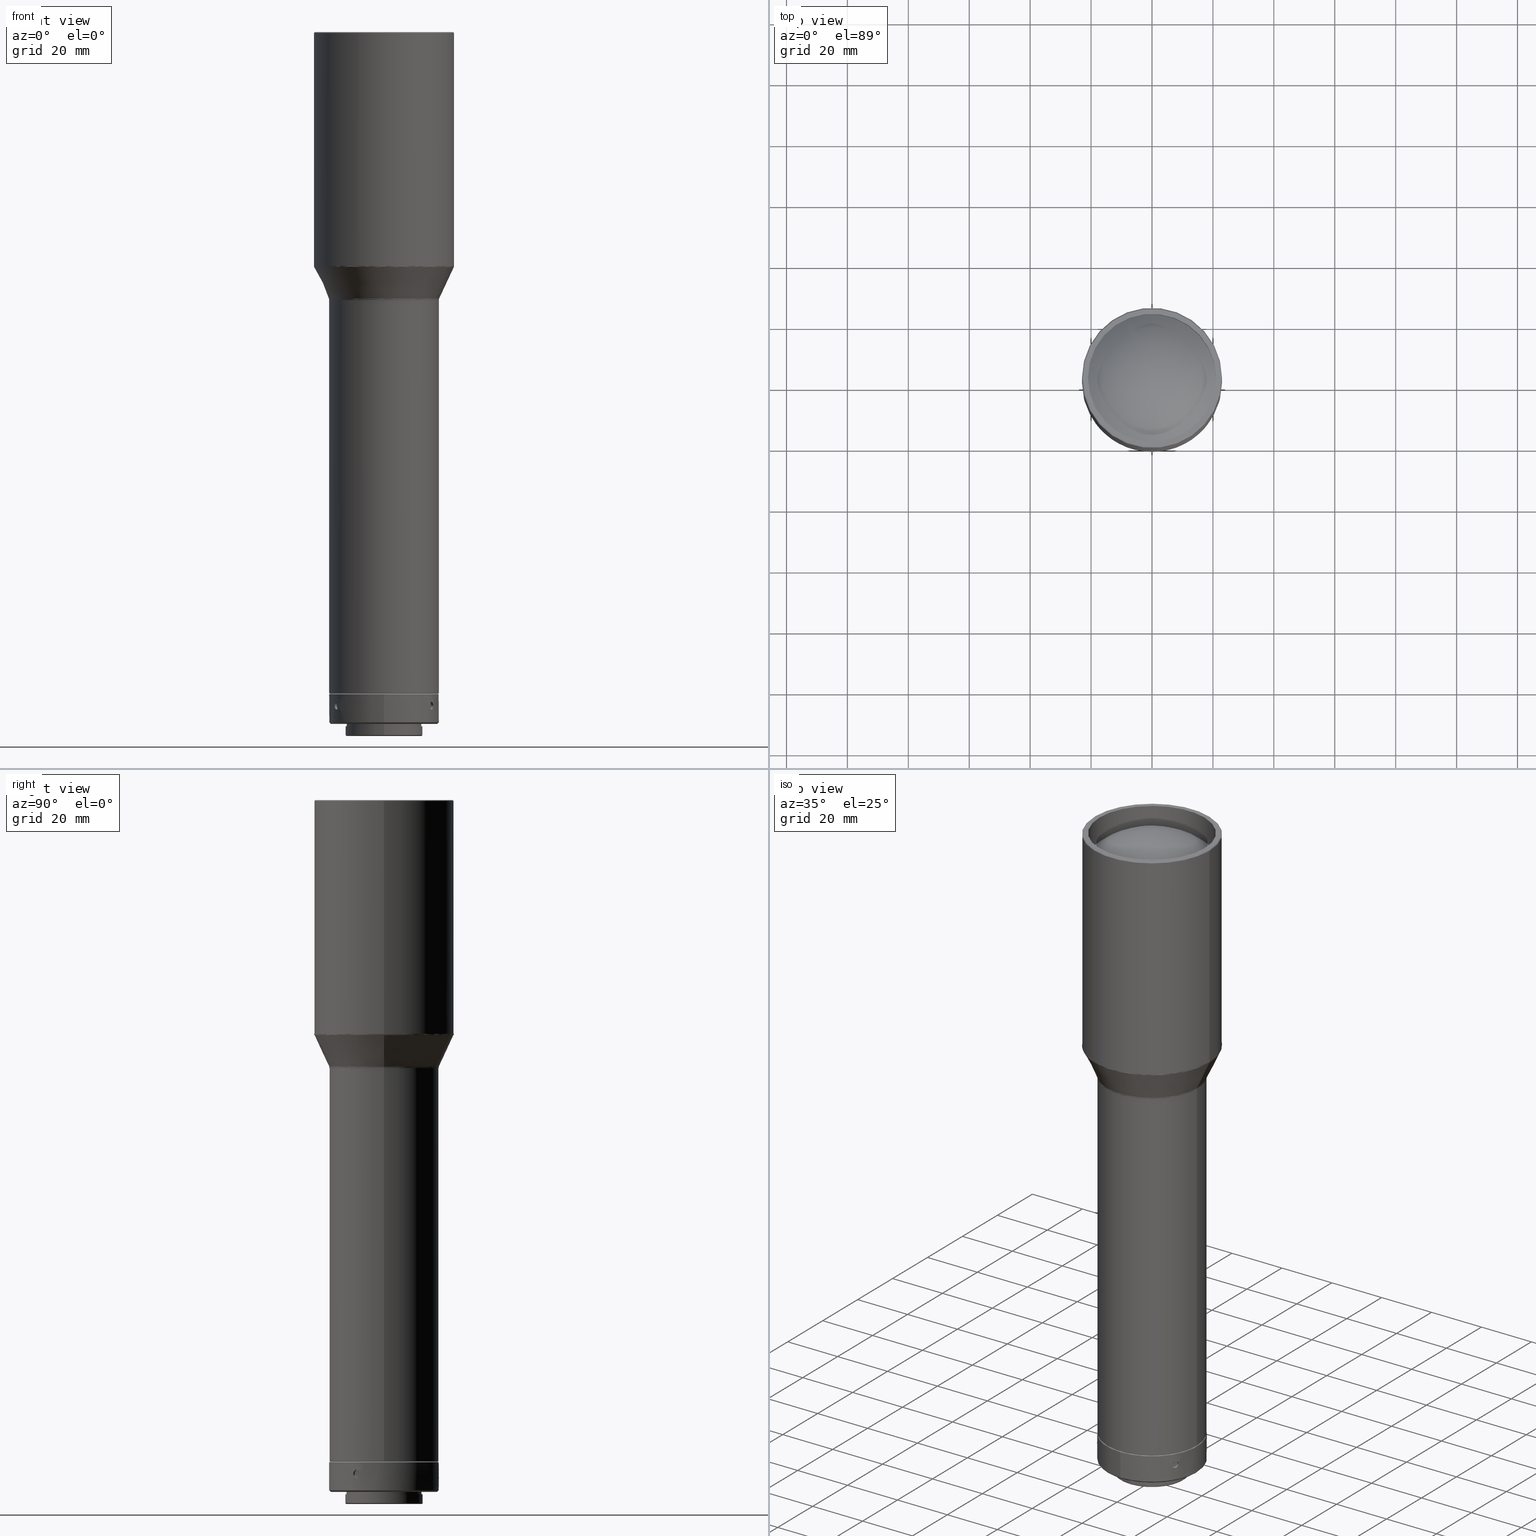
[diagram: canonical four-view strip — front | top / right | iso, engineering-drawing reading convention]
A machine part, canonical four-view strip (front | top / right | iso — engineering-drawing reading convention). The complete STEP part file that produces these views, byte-faithful:
ISO-10303-21;
HEADER;
FILE_DESCRIPTION (( 'STEP AP203' ),
    '1' );
FILE_NAME ('600085.STEP',
    '2024-08-14T02:22:36',
    ( 'Windows User' ),
    ( 'P R C' ),
    'SwSTEP 2.0',
    'SolidWorks 2020',
    '' );
FILE_SCHEMA (( 'CONFIG_CONTROL_DESIGN' ));
ENDSEC;

DATA;
#1 = CARTESIAN_POINT ( 'NONE',  ( -16.17582393315548472, -7.895740629197182336, -677.1560000000001764 ) ) ;
#2 = CC_DESIGN_SECURITY_CLASSIFICATION ( #151, ( #84 ) ) ;
#3 = CARTESIAN_POINT ( 'NONE',  ( -14.22941345639918254, -9.658731362436537182, -677.1559999999998354 ) ) ;
#4 = CARTESIAN_POINT ( 'NONE',  ( -23.00000000000000355, 46.00000000000000000, -532.9249152400420826 ) ) ;
#5 = EDGE_LOOP ( 'NONE', ( #472 ) ) ;
#6 = ADVANCED_FACE ( 'NONE', ( #657, #529 ), #176, .T. ) ;
#7 = CARTESIAN_POINT ( 'NONE',  ( -16.17582393315549183, -7.895740629197166349, -676.9908007607349418 ) ) ;
#8 = CARTESIAN_POINT ( 'NONE',  ( -1.217386932848429026, 17.95889559784521339, -676.8283767959090937 ) ) ;
#9 = APPROVAL_ROLE ( '' ) ;
#10 = CARTESIAN_POINT ( 'NONE',  ( -22.96826780926334521, -45.93653561852670464, -533.0680499026376538 ) ) ;
#11 = AXIS2_PLACEMENT_3D ( 'NONE', #268, #664, #682 ) ;
#12 = VERTEX_POINT ( 'NONE', #262 ) ;
#13 = CARTESIAN_POINT ( 'NONE',  ( -0.6287950393457024667, 17.98965100100346248, -676.0633243457097024 ) ) ;
#14 = CARTESIAN_POINT ( 'NONE',  ( 15.19026408422148222, -9.657597898278542203, -676.1568305139829818 ) ) ;
#15 = ADVANCED_FACE ( 'NONE', ( #255, #518 ), #564, .T. ) ;
#16 = ORIENTED_EDGE ( 'NONE', *, *, #241, .T. ) ;
#17 = CARTESIAN_POINT ( 'NONE',  ( -17.69999999999999218, -1.118892443358231619E-13, -673.1559999999999491 ) ) ;
#18 = DIRECTION ( 'NONE',  ( 0.000000000000000000, 0.000000000000000000, 1.000000000000000000 ) ) ;
#19 = CARTESIAN_POINT ( 'NONE',  ( -17.99999999999999645, -36.00000000000000000, -543.9442292651908701 ) ) ;
#20 = CARTESIAN_POINT ( 'NONE',  ( 15.75062854503686616, -8.714374892937831518, -678.3730153772538642 ) ) ;
#21 = EDGE_LOOP ( 'NONE', ( #437 ) ) ;
#22 = VERTEX_POINT ( 'NONE', #473 ) ;
#23 = DIRECTION ( 'NONE',  ( 0.000000000000000000, 0.000000000000000000, -1.000000000000000000 ) ) ;
#24 = CARTESIAN_POINT ( 'NONE',  ( 6.938893903907228378E-15, -1.121858894791991623E-13, -682.6559999999999491 ) ) ;
#25 = CC_DESIGN_PERSON_AND_ORGANIZATION_ASSIGNMENT ( #672, #306, ( #84 ) ) ;
#26 = DIRECTION ( 'NONE',  ( -1.000000000000000000, 0.000000000000000000, 0.000000000000000000 ) ) ;
#27 = ORIENTED_EDGE ( 'NONE', *, *, #838, .T. ) ;
#28 = CARTESIAN_POINT ( 'NONE',  ( -14.22941345639918431, -9.658731362436537182, -677.1559999999999491 ) ) ;
#29 = CARTESIAN_POINT ( 'NONE',  ( 0.3260722864606843685, 17.99768327192957429, -678.3737849096970649 ) ) ;
#30 = CIRCLE ( 'NONE', #390, 17.99999999999998579 ) ;
#31 = ADVANCED_FACE ( 'NONE', ( #75, #589 ), #200, .F. ) ;
#32 = VERTEX_POINT ( 'NONE', #610 ) ;
#33 = B_SPLINE_CURVE_WITH_KNOTS ( 'NONE', 3,
 ( #80, #780, #134, #608, #331, #14, #540, #801, #471, #139, #385, #337, #187, #450, #651, #61, #314, #850, #523, #786, #191, #807, #484, #20, #285, #421, #90, #217, #417, #222, #343, #354, #227, #411 ),
 .UNSPECIFIED., .T., .F.,
 ( 4, 2, 2, 2, 2, 2, 2, 2, 2, 2, 2, 2, 2, 2, 2, 2, 4 ),
 ( 0.000000000000000000, 0.0004885519476059258480, 0.0009771038952118516960, 0.001465655842817777544, 0.001954207790423703392, 0.002442759738029634444, 0.002931311685635565496, 0.003419863633241496548, 0.003908415580847427601, 0.004396967528453359086, 0.004885519476059289705, 0.005374071423665221191, 0.005862623371271151809, 0.006351175318877078091, 0.006839727266483003505, 0.007328279214088929787, 0.007816831161694855201 ),
 .UNSPECIFIED. ) ;
#34 = CARTESIAN_POINT ( 'NONE',  ( -0.3260773514036688359, 17.19546164271526933, -678.3737840320303576 ) ) ;
#35 = DIRECTION ( 'NONE',  ( -0.000000000000000000, -0.000000000000000000, 1.000000000000000000 ) ) ;
#36 = CARTESIAN_POINT ( 'NONE',  ( 17.99999999999998579, 1.355345421721433986E-15, -673.0560000000001537 ) ) ;
#37 = CARTESIAN_POINT ( 'NONE',  ( -18.09369221296336505, 36.18738442592672300, -543.5216110034502890 ) ) ;
#38 = DIRECTION ( 'NONE',  ( 3.160814403572534137E-32, 3.224403732347684308E-17, 1.000000000000000000 ) ) ;
#39 = DIRECTION ( 'NONE',  ( -1.848892746611746419E-32, 1.318609258053556101E-16, 1.000000000000000000 ) ) ;
#40 = CIRCLE ( 'NONE', #514, 21.00000000000000000 ) ;
#41 = CONICAL_SURFACE ( 'NONE', #575, 23.00000000000000000, 0.7853981633974425058 ) ;
#42 = DIRECTION ( 'NONE',  ( -1.000000000000000000, -5.551115123125783935E-17, 0.000000000000000000 ) ) ;
#43 = EDGE_CURVE ( 'NONE', #798, #798, #631, .T. ) ;
#44 = VERTEX_POINT ( 'NONE', #566 ) ;
#45 = DIRECTION ( 'NONE',  ( 0.000000000000000000, -1.000000000000000000, 0.000000000000000000 ) ) ;
#46 = APPROVAL_ROLE ( '' ) ;
#47 = FACE_OUTER_BOUND ( 'NONE', #247, .T. ) ;
#48 = CARTESIAN_POINT ( 'NONE',  ( 17.49999999999997158, -1.121858894791991623E-13, -683.1559999999999491 ) ) ;
#49 = ORIENTED_EDGE ( 'NONE', *, *, #825, .F. ) ;
#50 = FACE_BOUND ( 'NONE', #396, .T. ) ;
#51 = ADVANCED_FACE ( 'NONE', ( #71 ), #735, .T. ) ;
#52 = EDGE_LOOP ( 'NONE', ( #439 ) ) ;
#53 = FACE_OUTER_BOUND ( 'NONE', #731, .T. ) ;
#54 = CARTESIAN_POINT ( 'NONE',  ( -15.36855422826499584, -7.719336891354706687, -677.9246363267924380 ) ) ;
#55 = ORIENTED_EDGE ( 'NONE', *, *, #754, .F. ) ;
#56 = CARTESIAN_POINT ( 'NONE',  ( 15.26260369159948560, -7.926783396440841400, -678.1570960122049883 ) ) ;
#57 = CARTESIAN_POINT ( 'NONE',  ( -14.56980172932372319, -9.138424751946047309, -676.0637087239560969 ) ) ;
#58 = ORIENTED_EDGE ( 'NONE', *, *, #500, .F. ) ;
#59 = CARTESIAN_POINT ( 'NONE',  ( 15.36855463062374483, -7.719336090856620203, -676.3873647911226499 ) ) ;
#60 = CARTESIAN_POINT ( 'NONE',  ( -14.36941847034371378, -9.449890684140930475, -676.3873647911226499 ) ) ;
#61 = CARTESIAN_POINT ( 'NONE',  ( 16.16155327807074826, -7.925159788840905328, -676.8283767959090937 ) ) ;
#62 = EDGE_LOOP ( 'NONE', ( #600 ) ) ;
#63 = CARTESIAN_POINT ( 'NONE',  ( 15.19900885041958816, -8.048606049723865397, -676.0637087239560969 ) ) ;
#64 = CARTESIAN_POINT ( 'NONE',  ( -14.31786127808570086, -9.527334428536541111, -676.5259866061701359 ) ) ;
#65 = CC_DESIGN_PERSON_AND_ORGANIZATION_ASSIGNMENT ( #729, #133, ( #151 ) ) ;
#66 = CARTESIAN_POINT ( 'NONE',  ( -22.96826780926335232, 8.035043384138508361E-17, -533.0680499026376538 ) ) ;
#67 = EDGE_LOOP ( 'NONE', ( #303 ) ) ;
#68 = CARTESIAN_POINT ( 'NONE',  ( 15.47941345639905464, -7.493667852975652188, -677.1559999999998354 ) ) ;
#69 = CARTESIAN_POINT ( 'NONE',  ( -0.1639394304986033224, 17.99999215467978431, -678.4058870273640878 ) ) ;
#70 = APPROVAL_STATUS ( 'not_yet_approved' ) ;
#71 = FACE_OUTER_BOUND ( 'NONE', #234, .T. ) ;
#72 = ORIENTED_EDGE ( 'NONE', *, *, #300, .T. ) ;
#73 = CARTESIAN_POINT ( 'NONE',  ( -15.26487600238796460, -9.539716451242936657, -678.2482961720307912 ) ) ;
#74 = CYLINDRICAL_SURFACE ( 'NONE', #618, 1.249999999999990230 ) ;
#75 = FACE_OUTER_BOUND ( 'NONE', #574, .T. ) ;
#76 = EDGE_LOOP ( 'NONE', ( #662 ) ) ;
#77 = AXIS2_PLACEMENT_3D ( 'NONE', #753, #427, #154 ) ;
#78 = CARTESIAN_POINT ( 'NONE',  ( 14.92582393315539235, -10.06080413865847767, -677.1560000000000628 ) ) ;
#79 = CARTESIAN_POINT ( 'NONE',  ( 18.00000000000000000, -36.00000000000000000, -543.9442292651908701 ) ) ;
#80 = CARTESIAN_POINT ( 'NONE',  ( 14.92582393315539235, -10.06080413865847589, -677.1559999999999491 ) ) ;
#81 = ORIENTED_EDGE ( 'NONE', *, *, #418, .F. ) ;
#82 = CARTESIAN_POINT ( 'NONE',  ( -23.00000000000000000, 7.858894340250382922E-17, -532.7783053373569828 ) ) ;
#83 = CARTESIAN_POINT ( 'NONE',  ( 7.301760564668366470E-15, -1.120085472739200441E-13, -677.1559999999999491 ) ) ;
#84 = PRODUCT_DEFINITION_FORMATION_WITH_SPECIFIED_SOURCE ( '�κ�', '', #524, .NOT_KNOWN. ) ;
#85 = CARTESIAN_POINT ( 'NONE',  ( -1.249999999999982014, 17.15239921541191848, -676.9907957552392190 ) ) ;
#86 = ORIENTED_EDGE ( 'NONE', *, *, #404, .T. ) ;
#87 = CARTESIAN_POINT ( 'NONE',  ( -15.74948706598769377, -8.716454752419886987, -678.3737849096970649 ) ) ;
#88 = DIRECTION ( 'NONE',  ( 1.000000000000000000, 0.000000000000000000, 0.000000000000000000 ) ) ;
#89 = CARTESIAN_POINT ( 'NONE',  ( -1.091753383613250472, 17.16331369244873173, -677.7864290198473327 ) ) ;
#90 = CARTESIAN_POINT ( 'NONE',  ( 15.42341477952702533, -9.281228519509944874, -678.3737849096972923 ) ) ;
#91 = CARTESIAN_POINT ( 'NONE',  ( 17.89999999999988844, -1.116377419258196927E-13, -673.1559999999999491 ) ) ;
#92 = AXIS2_PLACEMENT_3D ( 'NONE', #111, #288, #45 ) ;
#93 = CARTESIAN_POINT ( 'NONE',  ( 0.6292064058917042901, 17.18703082648402258, -678.2482916579607490 ) ) ;
#94 = ADVANCED_FACE ( 'NONE', ( #599, #730 ), #120, .F. ) ;
#95 = AXIS2_PLACEMENT_3D ( 'NONE', #788, #179, #515 ) ;
#96 = DATE_AND_TIME ( #167, #829 ) ;
#97 = CARTESIAN_POINT ( 'NONE',  ( -0.6288051433233612375, 17.18705418729226864, -678.2486703434691435 ) ) ;
#98 = DIRECTION ( 'NONE',  ( 1.000000000000000000, 5.551115123125783935E-17, 0.000000000000000000 ) ) ;
#99 = FACE_OUTER_BOUND ( 'NONE', #108, .T. ) ;
#100 = PLANE ( 'NONE',  #811 ) ;
#101 = EDGE_CURVE ( 'NONE', #621, #621, #33, .T. ) ;
#102 = APPLICATION_PROTOCOL_DEFINITION ( 'international standard', 'config_control_design', 1994, #117 ) ;
#103 = CARTESIAN_POINT ( 'NONE',  ( 18.09369221296336505, -36.18738442592672300, -543.5216110034502890 ) ) ;
#104 = B_SPLINE_CURVE_WITH_KNOTS ( 'NONE', 3,
 ( #180, #709, #115, #378, #582, #602, #150, #543, #805, #395, #810, #13, #474, #660, #794, #8, #280, #328, #208, #738, #409, #597, #263, #556, #69, #335, #29, #751, #323, #817, #728, #220, #676, #258 ),
 .UNSPECIFIED., .T., .F.,
 ( 4, 2, 2, 2, 2, 2, 2, 2, 2, 2, 2, 2, 2, 2, 2, 2, 4 ),
 ( 0.000000000000000000, 0.0004885519476059285585, 0.0009771038952118571170, 0.001465655842817785567, 0.001954207790423713800, 0.002442759738029641817, 0.002931311685635570267, 0.003419863633241497416, 0.003908415580847424999, 0.004396967528453353882, 0.004885519476059281031, 0.005374071423665209048, 0.005862623371271137064, 0.006351175318877064213, 0.006839727266482991362, 0.007328279214088919379, 0.007816831161694846528 ),
 .UNSPECIFIED. ) ;
#105 = CARTESIAN_POINT ( 'NONE',  ( 18.00000000000000355, 2.354546143884076056E-15, -543.7976193625058841 ) ) ;
#106 = MANIFOLD_SOLID_BREP ( '<��Ƭ>-<�ƶ���1>', #444 ) ;
#107 =( NAMED_UNIT ( * ) PLANE_ANGLE_UNIT ( ) SI_UNIT ( $, .RADIAN. ) );
#108 = EDGE_LOOP ( 'NONE', ( #525 ) ) ;
#109 = EDGE_CURVE ( 'NONE', #414, #414, #641, .T. ) ;
#110 = CYLINDRICAL_SURFACE ( 'NONE', #777, 17.19788646447194225 ) ;
#111 = CARTESIAN_POINT ( 'NONE',  ( 7.301760564668366470E-15, -1.121858894791991623E-13, -682.6559999999999491 ) ) ;
#112 = DIRECTION ( 'NONE',  ( 1.000000000000000000, 0.000000000000000000, 0.000000000000000000 ) ) ;
#113 = EDGE_LOOP ( 'NONE', ( #604 ) ) ;
#114 = CARTESIAN_POINT ( 'NONE',  ( 14.36941896241600780, -9.449889935438978483, -677.9246363267924380 ) ) ;
#115 = CARTESIAN_POINT ( 'NONE',  ( 1.217464335294319522, 17.95889008224752814, -676.8287009706280060 ) ) ;
#116 = ORIENTED_EDGE ( 'NONE', *, *, #710, .F. ) ;
#117 = APPLICATION_CONTEXT ( 'configuration controlled 3d designs of mechanical parts and assemblies' ) ;
#118 = CARTESIAN_POINT ( 'NONE',  ( -7.523678467577149378E-32, 1.355345421721433986E-15, -543.9442292651908701 ) ) ;
#119 = CARTESIAN_POINT ( 'NONE',  ( -15.36895870023661281, -7.718553941183322387, -676.3880848225667251 ) ) ;
#120 = PLANE ( 'NONE',  #653 ) ;
#121 = CARTESIAN_POINT ( 'NONE',  ( 15.40984428450552990, -7.635964380415570574, -676.5259866061701359 ) ) ;
#122 = CARTESIAN_POINT ( 'NONE',  ( -14.36894364833582216, -9.450630925597840459, -677.9239163223685409 ) ) ;
#123 = CARTESIAN_POINT ( 'NONE',  ( 0.000000000000000000, 0.000000000000000000, -456.0000000000000000 ) ) ;
#124 = AXIS2_PLACEMENT_3D ( 'NONE', #702, #759, #640 ) ;
#125 = EDGE_LOOP ( 'NONE', ( #590 ) ) ;
#126 = CARTESIAN_POINT ( 'NONE',  ( -15.67042028344140725, -8.858020202463405823, -675.9061129727664365 ) ) ;
#127 = CARTESIAN_POINT ( 'NONE',  ( -15.47941331455567671, -7.493668145976682737, -677.3212064411122810 ) ) ;
#128 = DIRECTION ( 'NONE',  ( 0.000000000000000000, 4.877962325809949585E-16, 1.000000000000000000 ) ) ;
#129 = EDGE_LOOP ( 'NONE', ( #315 ) ) ;
#130 = CARTESIAN_POINT ( 'NONE',  ( 14.22941363922382152, -9.658731093096051268, -677.3212064411122810 ) ) ;
#131 = EDGE_CURVE ( 'NONE', #32, #32, #551, .T. ) ;
#132 = FACE_OUTER_BOUND ( 'NONE', #62, .T. ) ;
#133 = PERSON_AND_ORGANIZATION_ROLE ( 'classification_officer' ) ;
#134 = CARTESIAN_POINT ( 'NONE',  ( 14.94412286735164486, -10.03380008369042642, -676.8287009706278923 ) ) ;
#135 = ORIENTED_EDGE ( 'NONE', *, *, #317, .F. ) ;
#136 = CARTESIAN_POINT ( 'NONE',  ( 6.938893903907228378E-15, -1.121858894791991623E-13, -683.1559999999999491 ) ) ;
#137 = DIRECTION ( 'NONE',  ( 0.000000000000000000, -1.000000000000000000, 0.000000000000000000 ) ) ;
#138 = CARTESIAN_POINT ( 'NONE',  ( 1.091982173702044756, 17.16329886241980418, -677.7860147772427126 ) ) ;
#139 = CARTESIAN_POINT ( 'NONE',  ( 15.66957017123618279, -8.859523938431868473, -675.9058876239671463 ) ) ;
#140 = CIRCLE ( 'NONE', #244, 18.09369221296335795 ) ;
#141 = ORIENTED_EDGE ( 'NONE', *, *, #838, .F. ) ;
#142 = ADVANCED_FACE ( 'NONE', ( #360, #348, #275, #679, #626 ), #224, .T. ) ;
#143 = CIRCLE ( 'NONE', #92, 17.99999999999998579 ) ;
#144 = VERTEX_POINT ( 'NONE', #82 ) ;
#145 = FACE_OUTER_BOUND ( 'NONE', #802, .T. ) ;
#146 = CARTESIAN_POINT ( 'NONE',  ( -1.249999999999983125, 17.15239921541192203, -677.3212042447606791 ) ) ;
#147 = FACE_BOUND ( 'NONE', #700, .T. ) ;
#148 = EDGE_LOOP ( 'NONE', ( #141 ) ) ;
#149 = VERTEX_POINT ( 'NONE', #491 ) ;
#150 = CARTESIAN_POINT ( 'NONE',  ( 0.6291994582050565166, 17.98962860717556111, -676.0637041845226349 ) ) ;
#151 = SECURITY_CLASSIFICATION ( '', '', #464 ) ;
#152 = CARTESIAN_POINT ( 'NONE',  ( -14.94412316329296608, -10.03379964370071242, -677.4833008894951263 ) ) ;
#153 = EDGE_CURVE ( 'NONE', #820, #820, #494, .T. ) ;
#154 = DIRECTION ( 'NONE',  ( 1.000000000000000000, 0.000000000000000000, -0.000000000000000000 ) ) ;
#155 = APPROVAL_DATE_TIME ( #233, #480 ) ;
#156 = AXIS2_PLACEMENT_3D ( 'NONE', #661, #790, #528 ) ;
#157 = FACE_OUTER_BOUND ( 'NONE', #711, .T. ) ;
#158 = CARTESIAN_POINT ( 'NONE',  ( 7.301760564668366470E-15, -1.122278067277196752E-13, -683.9560000000000173 ) ) ;
#159 = APPROVAL_ROLE ( '' ) ;
#160 = UNCERTAINTY_MEASURE_WITH_UNIT (LENGTH_MEASURE( 1.000000000000000082E-05 ), #628, 'distance_accuracy_value', 'NONE');
#161 = FACE_OUTER_BOUND ( 'NONE', #67, .T. ) ;
#162 = ADVANCED_FACE ( 'NONE', ( #163 ), #282, .T. ) ;
#163 = FACE_OUTER_BOUND ( 'NONE', #771, .T. ) ;
#164 = DIRECTION ( 'NONE',  ( 0.000000000000000000, 0.000000000000000000, 1.000000000000000000 ) ) ;
#165 = CARTESIAN_POINT ( 'NONE',  ( 17.99999999999999645, 35.99999999999999289, -543.7976193625059977 ) ) ;
#166 = FACE_OUTER_BOUND ( 'NONE', #580, .T. ) ;
#167 = CALENDAR_DATE ( 2024, 14, 8 ) ;
#168 = DIRECTION ( 'NONE',  ( 3.160814403572534137E-32, 3.224403732347684308E-17, 1.000000000000000000 ) ) ;
#169 = AXIS2_PLACEMENT_3D ( 'NONE', #741, #284, #539 ) ;
#170 = ADVANCED_FACE ( 'NONE', ( #356, #210 ), #613, .F. ) ;
#171 = CALENDAR_DATE ( 2024, 14, 8 ) ;
#172 = EDGE_LOOP ( 'NONE', ( #595 ) ) ;
#173 = CARTESIAN_POINT ( 'NONE',  ( -18.03173219073665123, 36.06346438147329536, -543.6544846999103129 ) ) ;
#174 = ORIENTED_EDGE ( 'NONE', *, *, #506, .T. ) ;
#175 = DIRECTION ( 'NONE',  ( 0.000000000000000000, 0.000000000000000000, 1.000000000000000000 ) ) ;
#176 =( BOUNDED_SURFACE ( )  B_SPLINE_SURFACE ( 3, 3, ( 
 ( #536, #797, #201, #466, #400, #666, #486 ),
 ( #277, #554, #815, #218, #749, #10, #66 ),
 ( #205, #4, #594, #406, #796, #319, #246 ),
 ( #453, #718, #603, #714, #665, #534, #250 ) ),
 .UNSPECIFIED., .F., .T., .F. ) 
 B_SPLINE_SURFACE_WITH_KNOTS ( ( 4, 4 ),
 ( 4, 3, 4 ),
 ( 0.000000000000000000, 1.000000000000000000 ),
 ( 0.000000000000000000, 0.5000000000000000000, 1.000000000000000000 ),
 .UNSPECIFIED. ) 
 GEOMETRIC_REPRESENTATION_ITEM ( )  RATIONAL_B_SPLINE_SURFACE ( (
 ( 1.000000000000000000, 0.3333333333333333148, 0.3333333333333333148, 1.000000000000000000, 0.3333333333333333148, 0.3333333333333333148, 1.000000000000000000),
 ( 0.9841973380799535764, 0.3280657793599844885, 0.3280657793599844885, 0.9841973380799535764, 0.3280657793599844885, 0.3280657793599844885, 0.9841973380799535764),
 ( 0.9841973380799535764, 0.3280657793599844885, 0.3280657793599844885, 0.9841973380799535764, 0.3280657793599844885, 0.3280657793599844885, 0.9841973380799535764),
 ( 1.000000000000000000, 0.3333333333333333148, 0.3333333333333333148, 1.000000000000000000, 0.3333333333333333148, 0.3333333333333333148, 1.000000000000000000) ) ) 
 REPRESENTATION_ITEM ( '' )  SURFACE ( )  );
#177 = CALENDAR_DATE ( 2024, 14, 8 ) ;
#178 = EDGE_LOOP ( 'NONE', ( #577 ) ) ;
#179 = DIRECTION ( 'NONE',  ( 0.000000000000000000, 0.000000000000000000, 1.000000000000000000 ) ) ;
#180 = CARTESIAN_POINT ( 'NONE',  ( 1.249999999999998668, 17.95654476785540865, -677.1559999999998354 ) ) ;
#181 = B_SPLINE_CURVE_WITH_KNOTS ( 'NONE', 3,
 ( #68, #304, #530, #121, #59, #307, #63, #382, #520, #645, #526, #840, #778, #793, #578, #586, #257, #130, #238, #198, #114, #649, #451, #511, #387, #309, #443, #455, #56, #716, #242, #184, #654, #316 ),
 .UNSPECIFIED., .T., .F.,
 ( 4, 2, 2, 2, 2, 2, 2, 2, 2, 2, 2, 2, 2, 2, 2, 2, 4 ),
 ( 0.000000000000000000, 0.0004885656475418105864, 0.0009771312950836211729, 0.001465696942625431759, 0.001954262590167242346, 0.002442828237709053149, 0.002931393885250863519, 0.003419959532792673888, 0.003908525180334484692, 0.004397090827876295495, 0.004885656475418106298, 0.005374222122959916234, 0.005862787770501727037, 0.006351353418043537841, 0.006839919065585347777, 0.007328484713127158580, 0.007817050360668969383 ),
 .UNSPECIFIED. ) ;
#182 = AXIS2_PLACEMENT_3D ( 'NONE', #760, #38, #814 ) ;
#183 = EDGE_LOOP ( 'NONE', ( #86 ) ) ;
#184 = CARTESIAN_POINT ( 'NONE',  ( 15.46523618031811154, -7.523146432378799986, -677.4836383190428251 ) ) ;
#185 = CARTESIAN_POINT ( 'NONE',  ( -15.19882845616189293, -8.048965222648984508, -676.0633300436273885 ) ) ;
#186 = ADVANCED_FACE ( 'NONE', ( #822 ), #100, .F. ) ;
#187 = CARTESIAN_POINT ( 'NONE',  ( 15.95789887597218204, -8.328212755427133018, -676.1549039321261034 ) ) ;
#188 = APPROVAL_PERSON_ORGANIZATION ( #298, #383, #46 ) ;
#189 = DIRECTION ( 'NONE',  ( 1.000000000000000000, 0.000000000000000000, 0.000000000000000000 ) ) ;
#190 = CARTESIAN_POINT ( 'NONE',  ( -15.40974274239072983, -7.636169913636612350, -676.5255724148241825 ) ) ;
#191 = CARTESIAN_POINT ( 'NONE',  ( 16.06431448413912833, -8.121029507381926749, -677.9246321668028941 ) ) ;
#192 = EDGE_LOOP ( 'NONE', ( #321 ) ) ;
#193 = CYLINDRICAL_SURFACE ( 'NONE', #393, 12.29999999999998828 ) ;
#194 = DIRECTION ( 'NONE',  ( 0.000000000000000000, 0.000000000000000000, 1.000000000000000000 ) ) ;
#195 = CIRCLE ( 'NONE', #311, 12.29999999999998828 ) ;
#196 = EDGE_CURVE ( 'NONE', #149, #149, #776, .T. ) ;
#197 = ORIENTED_EDGE ( 'NONE', *, *, #196, .T. ) ;
#198 = CARTESIAN_POINT ( 'NONE',  ( 14.31786174074914264, -9.527333734115844166, -677.7860147772428263 ) ) ;
#199 = DIRECTION ( 'NONE',  ( 1.000000000000000000, 0.000000000000000000, 0.000000000000000000 ) ) ;
#200 = CYLINDRICAL_SURFACE ( 'NONE', #670, 1.249999999999990230 ) ;
#201 = CARTESIAN_POINT ( 'NONE',  ( 22.90630778703663495, 45.81261557407327700, -533.2009235990977913 ) ) ;
#202 = CARTESIAN_POINT ( 'NONE',  ( 6.938893903907228378E-15, -12.40000000000011049, -687.1559999999999491 ) ) ;
#203 = SPHERICAL_SURFACE ( 'NONE', #372, 31.20951493132240273 ) ;
#204 = CARTESIAN_POINT ( 'NONE',  ( 18.00000000000000000, 2.354546143884074873E-15, -543.9442292651908701 ) ) ;
#205 = CARTESIAN_POINT ( 'NONE',  ( -23.00000000000000000, 7.858894340250392782E-17, -532.9249152400419689 ) ) ;
#206 = EDGE_LOOP ( 'NONE', ( #49 ) ) ;
#207 = VERTEX_POINT ( 'NONE', #28 ) ;
#208 = CARTESIAN_POINT ( 'NONE',  ( -1.217463806281638528, 17.95889011854535156, -677.4833008894952400 ) ) ;
#209 = CARTESIAN_POINT ( 'NONE',  ( 0.3284543902362193069, 17.19540773128866107, -678.3730125228610177 ) ) ;
#210 = FACE_OUTER_BOUND ( 'NONE', #782, .T. ) ;
#211 = CIRCLE ( 'NONE', #11, 12.69999999999998685 ) ;
#212 = ORIENTED_EDGE ( 'NONE', *, *, #317, .T. ) ;
#213 = AXIS2_PLACEMENT_3D ( 'NONE', #691, #39, #638 ) ;
#214 = CARTESIAN_POINT ( 'NONE',  ( -16.10573089449706075, -8.037996915324919556, -677.7864259346065410 ) ) ;
#215 = DIRECTION ( 'NONE',  ( 0.000000000000000000, 4.877962325809949585E-16, 1.000000000000000000 ) ) ;
#216 = CARTESIAN_POINT ( 'NONE',  ( 0.1639463521797543399, 17.19787823539203231, -678.4058867817487908 ) ) ;
#217 = CARTESIAN_POINT ( 'NONE',  ( 15.26509761156015443, -9.539377401184950145, -678.2486760156607488 ) ) ;
#218 = CARTESIAN_POINT ( 'NONE',  ( 22.96826780926335232, 2.630340409601482840E-15, -533.0680499026376538 ) ) ;
#219 = CARTESIAN_POINT ( 'NONE',  ( -15.01397453000991078, -9.928974310108470647, -676.5255754048878316 ) ) ;
#220 = CARTESIAN_POINT ( 'NONE',  ( 1.217386422865426088, 17.95889563292094948, -677.4836250172555765 ) ) ;
#221 = CARTESIAN_POINT ( 'NONE',  ( -1.217382163328908806, 17.15486062387093824, -677.4836383190427114 ) ) ;
#222 = CARTESIAN_POINT ( 'NONE',  ( 15.06470539628271155, -9.852325387835605852, -677.9239201707626989 ) ) ;
#223 = CARTESIAN_POINT ( 'NONE',  ( -15.01384736159116784, -9.929166118684889852, -677.7860076652780208 ) ) ;
#224 = CYLINDRICAL_SURFACE ( 'NONE', #182, 17.99999999999998579 ) ;
#225 = PERSON_AND_ORGANIZATION_ROLE ( 'creator' ) ;
#226 = DIRECTION ( 'NONE',  ( 0.000000000000000000, -1.000000000000000000, 0.000000000000000000 ) ) ;
#227 = CARTESIAN_POINT ( 'NONE',  ( 14.92582393315539591, -10.06080413865846701, -677.3211992392650700 ) ) ;
#228 = CARTESIAN_POINT ( 'NONE',  ( 18.09369221296336150, 2.359747106487075248E-15, -543.5216110034501753 ) ) ;
#229 = FACE_BOUND ( 'NONE', #172, .T. ) ;
#230 = CARTESIAN_POINT ( 'NONE',  ( 18.03173219073665479, 2.356307634322956041E-15, -543.6544846999101992 ) ) ;
#231 = CARTESIAN_POINT ( 'NONE',  ( 7.301760564668366470E-15, -1.118795711246261205E-13, -673.1559999999999491 ) ) ;
#232 = AXIS2_PLACEMENT_3D ( 'NONE', #619, #270, #26 ) ;
#233 = DATE_AND_TIME ( #171, #522 ) ;
#234 = EDGE_LOOP ( 'NONE', ( #376 ) ) ;
#235 = CARTESIAN_POINT ( 'NONE',  ( -7.523678467577149378E-32, 1.355345421721433986E-15, -673.0560000000001537 ) ) ;
#236 = CC_DESIGN_PERSON_AND_ORGANIZATION_ASSIGNMENT ( #422, #636, ( #524 ) ) ;
#237 = DATE_AND_TIME ( #177, #701 ) ;
#238 = CARTESIAN_POINT ( 'NONE',  ( 14.24780948063569319, -9.631779581777042409, -677.4833106350290564 ) ) ;
#239 = DIRECTION ( 'NONE',  ( 0.000000000000000000, 0.000000000000000000, -1.000000000000000000 ) ) ;
#240 = EDGE_LOOP ( 'NONE', ( #547 ) ) ;
#241 = EDGE_CURVE ( 'NONE', #22, #22, #195, .T. ) ;
#242 = CARTESIAN_POINT ( 'NONE',  ( 15.40974236258858454, -7.636170681347894451, -677.7864290198473327 ) ) ;
#243 = CARTESIAN_POINT ( 'NONE',  ( -14.49609763741415414, -9.254410826598983064, -678.1570960122049883 ) ) ;
#244 = AXIS2_PLACEMENT_3D ( 'NONE', #293, #305, #828 ) ;
#245 = AXIS2_PLACEMENT_3D ( 'NONE', #818, #416, #550 ) ;
#246 = CARTESIAN_POINT ( 'NONE',  ( -23.00000000000000000, 7.858894340250392782E-17, -532.9249152400419689 ) ) ;
#247 = EDGE_LOOP ( 'NONE', ( #412 ) ) ;
#248 = DIRECTION ( 'NONE',  ( -0.000000000000000000, -0.000000000000000000, -1.000000000000000000 ) ) ;
#249 = CARTESIAN_POINT ( 'NONE',  ( -14.72743252171807882, -8.882154057267028335, -675.9389875588657333 ) ) ;
#250 = CARTESIAN_POINT ( 'NONE',  ( -23.00000000000000000, 7.858894340250391550E-17, -532.7783053373569828 ) ) ;
#251 = APPROVAL_PERSON_ORGANIZATION ( #823, #480, #159 ) ;
#252 = CARTESIAN_POINT ( 'NONE',  ( -15.75062872817967907, -8.714374564440142024, -675.9389846990359274 ) ) ;
#253 = CARTESIAN_POINT ( 'NONE',  ( 7.984547724812838373E-15, 12.29999999999987992, -683.1559999999999491 ) ) ;
#254 = ADVANCED_FACE ( 'NONE', ( #147, #646 ), #592, .F. ) ;
#255 = FACE_BOUND ( 'NONE', #125, .T. ) ;
#256 = EDGE_LOOP ( 'NONE', ( #707 ) ) ;
#257 = CARTESIAN_POINT ( 'NONE',  ( 14.22941327357700736, -9.658731631773406434, -676.9907984719935712 ) ) ;
#258 = CARTESIAN_POINT ( 'NONE',  ( 1.249999999999998668, 17.95654476785540865, -677.1559999999998354 ) ) ;
#259 = DATE_AND_TIME ( #329, #748 ) ;
#260 = CARTESIAN_POINT ( 'NONE',  ( 7.301760564668366470E-15, -1.120085472739200441E-13, -677.1559999999999491 ) ) ;
#261 = EDGE_LOOP ( 'NONE', ( #508 ) ) ;
#262 = CARTESIAN_POINT ( 'NONE',  ( -1.249999999999982014, 17.15239921541192203, -677.1559999999999491 ) ) ;
#263 = CARTESIAN_POINT ( 'NONE',  ( -0.6291987904827198719, 17.98962862930872575, -678.2482961720307912 ) ) ;
#264 = CARTESIAN_POINT ( 'NONE',  ( -1.217461627818231307, 17.15485470869596796, -676.8286913574240771 ) ) ;
#265 = DIRECTION ( 'NONE',  ( 0.000000000000000000, -1.000000000000000000, 9.860212880640876048E-18 ) ) ;
#266 = ORIENTED_EDGE ( 'NONE', *, *, #500, .T. ) ;
#267 = CARTESIAN_POINT ( 'NONE',  ( 21.00000000000000000, 1.355345421721433986E-15, -456.0000000000000000 ) ) ;
#268 = CARTESIAN_POINT ( 'NONE',  ( 7.301760564668366470E-15, -1.123213144359577549E-13, -686.8559999999999945 ) ) ;
#269 = CARTESIAN_POINT ( 'NONE',  ( 0.3260777490174741611, 17.19546163663074978, -675.9382160459790612 ) ) ;
#270 = DIRECTION ( 'NONE',  ( 0.000000000000000000, 0.000000000000000000, -1.000000000000000000 ) ) ;
#271 = ORIENTED_EDGE ( 'NONE', *, *, #742, .T. ) ;
#272 = VERTEX_POINT ( 'NONE', #555 ) ;
#273 = DIRECTION ( 'NONE',  ( 0.000000000000000000, -0.000000000000000000, 1.000000000000000000 ) ) ;
#274 = CARTESIAN_POINT ( 'NONE',  ( 1.249999675331746163, 17.15239923907249064, -677.3212064411118263 ) ) ;
#275 = FACE_BOUND ( 'NONE', #614, .T. ) ;
#276 = AXIS2_PLACEMENT_3D ( 'NONE', #692, #497, #686 ) ;
#277 = CARTESIAN_POINT ( 'NONE',  ( -22.96826780926335232, 8.035043384138508361E-17, -533.0680499026376538 ) ) ;
#278 = AXIS2_PLACEMENT_3D ( 'NONE', #549, #18, #88 ) ;
#279 = CARTESIAN_POINT ( 'NONE',  ( 22.90630778703667048, 2.626900937437365605E-15, -533.2009235990977913 ) ) ;
#280 = CARTESIAN_POINT ( 'NONE',  ( -1.250000303081691522, 17.95654474675713885, -676.9908032969528904 ) ) ;
#281 = CARTESIAN_POINT ( 'NONE',  ( -0.6292071210959671035, 17.18703080166963915, -676.0637087239557559 ) ) ;
#282 = PLANE ( 'NONE',  #77 ) ;
#283 = CARTESIAN_POINT ( 'NONE',  ( -15.42218430790382477, -9.283256999105431007, -678.3730153772537506 ) ) ;
#284 = DIRECTION ( 'NONE',  ( -1.194078953677995798E-30, -4.370956789862825094E-15, 1.000000000000000000 ) ) ;
#285 = CARTESIAN_POINT ( 'NONE',  ( 15.67042018912271217, -8.858020365846279276, -678.4058870273638604 ) ) ;
#286 = EDGE_CURVE ( 'NONE', #207, #207, #544, .T. ) ;
#287 = COORDINATED_UNIVERSAL_TIME_OFFSET ( 8, 0, .AHEAD. ) ;
#288 = DIRECTION ( 'NONE',  ( 3.160814403572534137E-32, 3.224403732347684308E-17, 1.000000000000000000 ) ) ;
#289 = CARTESIAN_POINT ( 'NONE',  ( -7.523678467577149378E-32, 1.355345421721433986E-15, -533.2009235990977913 ) ) ;
#290 = CARTESIAN_POINT ( 'NONE',  ( -17.99999999999997868, -1.108900436136605211E-13, -673.4559999999999036 ) ) ;
#291 = AXIS2_PLACEMENT_3D ( 'NONE', #24, #625, #410 ) ;
#292 = CARTESIAN_POINT ( 'NONE',  ( -2.775557561562891351E-14, 1.387778780781445676E-14, -464.9999999999999432 ) ) ;
#293 = CARTESIAN_POINT ( 'NONE',  ( -7.523678467577149378E-32, 1.355345421721433986E-15, -543.5216110034501753 ) ) ;
#294 = CARTESIAN_POINT ( 'NONE',  ( 17.99999999999998579, 1.355345421721433986E-15, -543.9442292651908701 ) ) ;
#295 = DIRECTION ( 'NONE',  ( 0.000000000000000000, -1.000000000000000000, 0.000000000000000000 ) ) ;
#296 = CC_DESIGN_APPROVAL ( #383, ( #693 ) ) ;
#297 =( BOUNDED_SURFACE ( )  B_SPLINE_SURFACE ( 3, 3, ( 
 ( #204, #671, #470, #403, #19, #79, #813 ),
 ( #105, #165, #299, #570, #429, #364, #837 ),
 ( #230, #833, #173, #426, #763, #765, #371 ),
 ( #824, #499, #37, #571, #435, #103, #228 ) ),
 .UNSPECIFIED., .F., .T., .F. ) 
 B_SPLINE_SURFACE_WITH_KNOTS ( ( 4, 4 ),
 ( 4, 3, 4 ),
 ( 0.000000000000000000, 1.000000000000000000 ),
 ( 0.000000000000000000, 0.5000000000000000000, 1.000000000000000000 ),
 .UNSPECIFIED. ) 
 GEOMETRIC_REPRESENTATION_ITEM ( )  RATIONAL_B_SPLINE_SURFACE ( (
 ( 1.000000000000000000, 0.3333333333333333148, 0.3333333333333333148, 1.000000000000000000, 0.3333333333333333148, 0.3333333333333333148, 1.000000000000000000),
 ( 0.9841973380799534654, 0.3280657793599844885, 0.3280657793599844885, 0.9841973380799534654, 0.3280657793599844885, 0.3280657793599844885, 0.9841973380799534654),
 ( 0.9841973380799534654, 0.3280657793599844885, 0.3280657793599844885, 0.9841973380799534654, 0.3280657793599844885, 0.3280657793599844885, 0.9841973380799534654),
 ( 1.000000000000000000, 0.3333333333333333148, 0.3333333333333333148, 1.000000000000000000, 0.3333333333333333148, 0.3333333333333333148, 1.000000000000000000) ) ) 
 REPRESENTATION_ITEM ( '' )  SURFACE ( )  );
#298 = PERSON_AND_ORGANIZATION ( #498, #784 ) ;
#299 = CARTESIAN_POINT ( 'NONE',  ( -18.00000000000000000, 35.99999999999999289, -543.7976193625059977 ) ) ;
#300 = EDGE_CURVE ( 'NONE', #675, #675, #40, .T. ) ;
#301 = CYLINDRICAL_SURFACE ( 'NONE', #363, 12.69999999999998685 ) ;
#302 = AXIS2_PLACEMENT_3D ( 'NONE', #399, #465, #724 ) ;
#303 = ORIENTED_EDGE ( 'NONE', *, *, #43, .F. ) ;
#304 = CARTESIAN_POINT ( 'NONE',  ( 15.47941345639905109, -7.493667852975650412, -676.9907957552391053 ) ) ;
#305 = DIRECTION ( 'NONE',  ( 0.000000000000000000, 0.000000000000000000, 1.000000000000000000 ) ) ;
#306 = PERSON_AND_ORGANIZATION_ROLE ( 'design_supplier' ) ;
#307 = CARTESIAN_POINT ( 'NONE',  ( 15.26355953043409563, -7.924920919413805720, -676.1568343898957210 ) ) ;
#308 = FACE_OUTER_BOUND ( 'NONE', #791, .T. ) ;
#309 = CARTESIAN_POINT ( 'NONE',  ( 14.97492132381687391, -8.458464727789792192, -678.4061126189640163 ) ) ;
#310 = CARTESIAN_POINT ( 'NONE',  ( -15.46523641940294347, -7.523145939603026022, -676.8283636231228684 ) ) ;
#311 = AXIS2_PLACEMENT_3D ( 'NONE', #546, #478, #743 ) ;
#312 = CC_DESIGN_PERSON_AND_ORGANIZATION_ASSIGNMENT ( #562, #225, ( #84 ) ) ;
#313 = AXIS2_PLACEMENT_3D ( 'NONE', #394, #783, #189 ) ;
#314 = CARTESIAN_POINT ( 'NONE',  ( 16.17582406642460313, -7.895740356171824459, -676.9908032969530041 ) ) ;
#315 = ORIENTED_EDGE ( 'NONE', *, *, #742, .F. ) ;
#316 = CARTESIAN_POINT ( 'NONE',  ( 15.47941345639905464, -7.493667852975652188, -677.1559999999998354 ) ) ;
#317 = EDGE_CURVE ( 'NONE', #144, #144, #389, .T. ) ;
#318 = CARTESIAN_POINT ( 'NONE',  ( -15.05474548163185844, -8.315339204057435651, -675.9382160459789475 ) ) ;
#319 = CARTESIAN_POINT ( 'NONE',  ( -22.99999999999999645, -46.00000000000000000, -532.9249152400420826 ) ) ;
#320 = APPROVAL_PERSON_ORGANIZATION ( #324, #545, #9 ) ;
#321 = ORIENTED_EDGE ( 'NONE', *, *, #647, .T. ) ;
#322 = CARTESIAN_POINT ( 'NONE',  ( -15.50735788173638952, -9.140483865457559531, -675.9058876239671463 ) ) ;
#323 = CARTESIAN_POINT ( 'NONE',  ( 0.7665048592950700623, 17.98405222760571220, -678.1570966175248714 ) ) ;
#324 = PERSON_AND_ORGANIZATION ( #498, #784 ) ;
#325 = DIRECTION ( 'NONE',  ( 0.000000000000000000, -1.000000000000000000, 0.000000000000000000 ) ) ;
#326 = EDGE_LOOP ( 'NONE', ( #644 ) ) ;
#327 = VERTEX_POINT ( 'NONE', #750 ) ;
#328 = CARTESIAN_POINT ( 'NONE',  ( -1.249999696914068759, 17.95654478895398753, -677.3212012896943861 ) ) ;
#329 = CALENDAR_DATE ( 2024, 14, 8 ) ;
#330 = CLOSED_SHELL ( 'NONE', ( #761, #572, #15, #352, #94, #6, #440, #819, #142, #635, #457, #31, #565, #374, #719, #627, #51, #254, #468, #804, #513, #584, #535, #186, #170, #162 ) ) ;
#331 = CARTESIAN_POINT ( 'NONE',  ( 15.06517464280624630, -9.851590384043143800, -676.3873688769147066 ) ) ;
#332 = EDGE_LOOP ( 'NONE', ( #447 ) ) ;
#333 = ADVANCED_BREP_SHAPE_REPRESENTATION ( '600085', ( #380, #106, #678 ), #593 ) ;
#334 = CARTESIAN_POINT ( 'NONE',  ( -16.17582393315547762, -7.895740629197199212, -677.3211992392655247 ) ) ;
#335 = CARTESIAN_POINT ( 'NONE',  ( 0.1622121008445830959, 18.00000780388012700, -678.4061123759023531 ) ) ;
#336 = FACE_OUTER_BOUND ( 'NONE', #541, .T. ) ;
#337 = CARTESIAN_POINT ( 'NONE',  ( 15.89389229175804452, -8.450273022655025557, -676.0633243457098160 ) ) ;
#338 = EDGE_CURVE ( 'NONE', #272, #272, #140, .T. ) ;
#339 = ORIENTED_EDGE ( 'NONE', *, *, #506, .F. ) ;
#340 = CARTESIAN_POINT ( 'NONE',  ( -14.92582376334303262, -10.06080439058558262, -676.9908032969528904 ) ) ;
#341 = CYLINDRICAL_SURFACE ( 'NONE', #349, 17.19788646447194225 ) ;
#342 = CARTESIAN_POINT ( 'NONE',  ( -0.9991361602801438480, 17.16922677499727712, -676.3873647911225362 ) ) ;
#343 = CARTESIAN_POINT ( 'NONE',  ( 15.01397497146082038, -9.928973643487971401, -677.7864259346066547 ) ) ;
#344 = EDGE_LOOP ( 'NONE', ( #81 ) ) ;
#345 = CARTESIAN_POINT ( 'NONE',  ( -15.89389197149335864, -8.450273622267859608, -678.2486760156606351 ) ) ;
#346 = CARTESIAN_POINT ( 'NONE',  ( -1.249999999999982458, 17.15239921541192203, -677.1559999999999491 ) ) ;
#347 = FACE_BOUND ( 'NONE', #652, .T. ) ;
#348 = FACE_BOUND ( 'NONE', #326, .T. ) ;
#349 = AXIS2_PLACEMENT_3D ( 'NONE', #733, #215, #137 ) ;
#350 = VERTEX_POINT ( 'NONE', #601 ) ;
#351 = CARTESIAN_POINT ( 'NONE',  ( 1.217382709627452320, 17.15486058453660334, -676.8283636231228684 ) ) ;
#352 = ADVANCED_FACE ( 'NONE', ( #229, #501 ), #792, .T. ) ;
#353 = AXIS2_PLACEMENT_3D ( 'NONE', #136, #481, #745 ) ;
#354 = CARTESIAN_POINT ( 'NONE',  ( 14.94416663059031158, -10.03373538488443018, -677.4836250172559176 ) ) ;
#355 = FACE_OUTER_BOUND ( 'NONE', #386, .T. ) ;
#356 = FACE_OUTER_BOUND ( 'NONE', #744, .T. ) ;
#357 = COORDINATED_UNIVERSAL_TIME_OFFSET ( 8, 0, .AHEAD. ) ;
#358 = DESIGN_CONTEXT ( 'detailed design', #117, 'design' ) ;
#359 = CARTESIAN_POINT ( 'NONE',  ( 0.000000000000000000, 1.355345421721433986E-15, -456.3000000000000114 ) ) ;
#360 = FACE_OUTER_BOUND ( 'NONE', #843, .T. ) ;
#361 = AXIS2_PLACEMENT_3D ( 'NONE', #123, #128, #325 ) ;
#362 = APPROVAL_STATUS ( 'not_yet_approved' ) ;
#363 = AXIS2_PLACEMENT_3D ( 'NONE', #231, #168, #295 ) ;
#364 = CARTESIAN_POINT ( 'NONE',  ( 18.00000000000000000, -35.99999999999999289, -543.7976193625059977 ) ) ;
#365 = CARTESIAN_POINT ( 'NONE',  ( 0.000000000000000000, 0.000000000000000000, 0.000000000000000000 ) ) ;
#366 = DIRECTION ( 'NONE',  ( -1.194078953677995798E-30, -4.370956789862825094E-15, 1.000000000000000000 ) ) ;
#367 = CC_DESIGN_APPROVAL ( #480, ( #84 ) ) ;
#368 = VERTEX_POINT ( 'NONE', #290 ) ;
#369 = EDGE_LOOP ( 'NONE', ( #715 ) ) ;
#370 = DIRECTION ( 'NONE',  ( 0.000000000000000000, 4.877962325809949585E-16, 1.000000000000000000 ) ) ;
#371 = CARTESIAN_POINT ( 'NONE',  ( 18.03173219073665479, 2.356307634322956041E-15, -543.6544846999101992 ) ) ;
#372 = AXIS2_PLACEMENT_3D ( 'NONE', #469, #746, #616 ) ;
#373 = CYLINDRICAL_SURFACE ( 'NONE', #685, 1.249999999999990230 ) ;
#374 = ADVANCED_FACE ( 'NONE', ( #308, #166 ), #373, .F. ) ;
#375 = APPROVAL_DATE_TIME ( #259, #545 ) ;
#376 = ORIENTED_EDGE ( 'NONE', *, *, #286, .T. ) ;
#377 = DIRECTION ( 'NONE',  ( 1.000000000000000000, 0.000000000000000000, 0.000000000000000000 ) ) ;
#378 = CARTESIAN_POINT ( 'NONE',  ( 1.091987193791653876, 17.96695623533816644, -676.5259936262732481 ) ) ;
#379 = B_SPLINE_CURVE_WITH_KNOTS ( 'NONE', 3,
 ( #346, #85, #264, #752, #342, #687, #281, #734, #684, #557, #269, #756, #420, #560, #483, #351, #806, #274, #747, #138, #492, #607, #93, #209, #216, #677, #34, #97, #612, #617, #89, #221, #146, #622 ),
 .UNSPECIFIED., .T., .F.,
 ( 4, 2, 2, 2, 2, 2, 2, 2, 2, 2, 2, 2, 2, 2, 2, 2, 4 ),
 ( 0.000000000000000000, 0.0004885656475418115622, 0.0009771312950836231245, 0.001465696942625434795, 0.001954262590167246249, 0.002442828237709057920, 0.002931393885250869590, 0.003419959532792681261, 0.003908525180334492498, 0.004397090827876304168, 0.004885656475418115839, 0.005374222122959926642, 0.005862787770501739180, 0.006351353418043550851, 0.006839919065585362522, 0.007328484713127172458, 0.007817050360668983261 ),
 .UNSPECIFIED. ) ;
#380 = MANIFOLD_SOLID_BREP ( '��ת1', #330 ) ;
#381 = ORIENTED_EDGE ( 'NONE', *, *, #404, .F. ) ;
#382 = CARTESIAN_POINT ( 'NONE',  ( 15.05588731477924824, -8.313253667695555293, -675.9389875588657333 ) ) ;
#383 = APPROVAL ( #362, 'δָ��' ) ;
#384 = CARTESIAN_POINT ( 'NONE',  ( -15.05588711884559139, -8.313254019715271781, -678.3730125228611314 ) ) ;
#385 = CARTESIAN_POINT ( 'NONE',  ( 15.74948724688818302, -8.716454428236497520, -675.9382151631306215 ) ) ;
#386 = EDGE_LOOP ( 'NONE', ( #674 ) ) ;
#387 = CARTESIAN_POINT ( 'NONE',  ( 14.81182626695117222, -8.740920823541701523, -678.4058867817487908 ) ) ;
#388 = CARTESIAN_POINT ( 'NONE',  ( -14.24785401698931508, -9.631714191492404709, -677.4836383190428251 ) ) ;
#389 = CIRCLE ( 'NONE', #532, 23.00000000000000000 ) ;
#390 = AXIS2_PLACEMENT_3D ( 'NONE', #235, #175, #827 ) ;
#391 = CARTESIAN_POINT ( 'NONE',  ( -2.107353116560288568E-13, 14.99999999999987210, -673.1559999999999491 ) ) ;
#392 = ORIENTED_EDGE ( 'NONE', *, *, #418, .T. ) ;
#393 = AXIS2_PLACEMENT_3D ( 'NONE', #708, #848, #774 ) ;
#394 = CARTESIAN_POINT ( 'NONE',  ( -7.523678467577149378E-32, 1.355345421721433986E-15, -456.0000000000000000 ) ) ;
#395 = CARTESIAN_POINT ( 'NONE',  ( -0.1622122895000074339, 18.00000780388917576, -675.9058876239671463 ) ) ;
#396 = EDGE_LOOP ( 'NONE', ( #726 ) ) ;
#397 = CARTESIAN_POINT ( 'NONE',  ( -15.42341458922619069, -9.281228838266036618, -675.9382151631302804 ) ) ;
#398 = DIRECTION ( 'NONE',  ( -1.000000000000000000, 0.000000000000000000, 0.000000000000000000 ) ) ;
#399 = CARTESIAN_POINT ( 'NONE',  ( 0.000000000000000000, 1.355345421721433986E-15, -456.0000000000000000 ) ) ;
#400 = CARTESIAN_POINT ( 'NONE',  ( 22.90630778703664205, -45.81261557407327700, -533.2009235990977913 ) ) ;
#401 = CARTESIAN_POINT ( 'NONE',  ( -14.94416634522245602, -10.03373580900457185, -676.8283767959090937 ) ) ;
#402 = CARTESIAN_POINT ( 'NONE',  ( -2.099015405931936584E-13, -1.116377419258196927E-13, -673.1559999999999491 ) ) ;
#403 = CARTESIAN_POINT ( 'NONE',  ( -18.00000000000000000, 3.561446995587931985E-16, -543.9442292651908701 ) ) ;
#404 = EDGE_CURVE ( 'NONE', #548, #548, #104, .T. ) ;
#405 = AXIS2_PLACEMENT_3D ( 'NONE', #253, #841, #713 ) ;
#406 = CARTESIAN_POINT ( 'NONE',  ( 23.00000000000000000, 2.632101900040364008E-15, -532.9249152400419689 ) ) ;
#407 = EDGE_LOOP ( 'NONE', ( #392 ) ) ;
#408 = CARTESIAN_POINT ( 'NONE',  ( -15.66957007690074022, -8.859524101807542351, -678.4061123759028078 ) ) ;
#409 = CARTESIAN_POINT ( 'NONE',  ( -0.9991393837938727929, 17.97261919133758568, -677.9246321668030077 ) ) ;
#410 = DIRECTION ( 'NONE',  ( 1.000000000000000000, 0.000000000000000000, 0.000000000000000000 ) ) ;
#411 = CARTESIAN_POINT ( 'NONE',  ( 14.92582393315539235, -10.06080413865847589, -677.1559999999999491 ) ) ;
#412 = ORIENTED_EDGE ( 'NONE', *, *, #825, .T. ) ;
#413 = LOCAL_TIME ( 10, 22, 36.00000000000000000, #357 ) ;
#414 = VERTEX_POINT ( 'NONE', #279 ) ;
#415 = FACE_OUTER_BOUND ( 'NONE', #461, .T. ) ;
#416 = DIRECTION ( 'NONE',  ( 4.214419204763384871E-32, -3.224403732347684925E-17, -1.000000000000000000 ) ) ;
#417 = CARTESIAN_POINT ( 'NONE',  ( 15.19139366244525924, -9.655838794076746723, -678.1570966175247577 ) ) ;
#418 = EDGE_CURVE ( 'NONE', #816, #816, #739, .T. ) ;
#419 = VERTEX_POINT ( 'NONE', #91 ) ;
#420 = CARTESIAN_POINT ( 'NONE',  ( 0.7665068729201165443, 17.18119418685139976, -676.1549045765329993 ) ) ;
#421 = CARTESIAN_POINT ( 'NONE',  ( 15.50735797605616995, -9.140483702072849326, -678.4061123759021257 ) ) ;
#422 = PERSON_AND_ORGANIZATION ( #498, #784 ) ;
#423 = FACE_OUTER_BOUND ( 'NONE', #129, .T. ) ;
#424 = DIRECTION ( 'NONE',  ( -3.160814403572534137E-32, -3.224403732347684308E-17, -1.000000000000000000 ) ) ;
#425 = VERTEX_POINT ( 'NONE', #495 ) ;
#426 = CARTESIAN_POINT ( 'NONE',  ( -18.03173219073665479, 3.543832091199120304E-16, -543.6544846999101992 ) ) ;
#427 = DIRECTION ( 'NONE',  ( 0.000000000000000000, 0.000000000000000000, 1.000000000000000000 ) ) ;
#428 = DIRECTION ( 'NONE',  ( 1.000000000000000000, 0.000000000000000000, 0.000000000000000000 ) ) ;
#429 = CARTESIAN_POINT ( 'NONE',  ( -17.99999999999999645, -35.99999999999999289, -543.7976193625059977 ) ) ;
#430 = CARTESIAN_POINT ( 'NONE',  ( -14.24780916205285308, -9.631780052171368567, -676.8286913574240771 ) ) ;
#431 = ADVANCED_FACE ( 'NONE', ( #611 ), #203, .T. ) ;
#432 = AXIS2_PLACEMENT_3D ( 'NONE', #623, #35, #561 ) ;
#433 = COORDINATED_UNIVERSAL_TIME_OFFSET ( 8, 0, .AHEAD. ) ;
#434 = CIRCLE ( 'NONE', #552, 17.90000000000009805 ) ;
#435 = CARTESIAN_POINT ( 'NONE',  ( -18.09369221296335795, -36.18738442592672300, -543.5216110034502890 ) ) ;
#436 = VERTEX_POINT ( 'NONE', #639 ) ;
#437 = ORIENTED_EDGE ( 'NONE', *, *, #131, .T. ) ;
#438 = CARTESIAN_POINT ( 'NONE',  ( 6.938893903907228378E-15, -1.110100273989989670E-13, -687.1559999999999491 ) ) ;
#439 = ORIENTED_EDGE ( 'NONE', *, *, #647, .F. ) ;
#440 = ADVANCED_FACE ( 'NONE', ( #463, #132 ), #585, .T. ) ;
#441 = DIRECTION ( 'NONE',  ( 0.000000000000000000, 0.000000000000000000, -1.000000000000000000 ) ) ;
#442 = ORIENTED_EDGE ( 'NONE', *, *, #241, .F. ) ;
#443 = CARTESIAN_POINT ( 'NONE',  ( 15.05474528809420676, -8.315339551443539534, -678.3737840320302439 ) ) ;
#444 = CLOSED_SHELL ( 'NONE', ( #431, #659 ) ) ;
#445 = CARTESIAN_POINT ( 'NONE',  ( -14.81182616590228385, -8.740920998543211695, -675.9061132183909422 ) ) ;
#446 = EDGE_CURVE ( 'NONE', #327, #327, #211, .T. ) ;
#447 = ORIENTED_EDGE ( 'NONE', *, *, #109, .F. ) ;
#448 = CARTESIAN_POINT ( 'NONE',  ( -16.16158720264608917, -7.925089998557340643, -676.8287009706281196 ) ) ;
#449 = CARTESIAN_POINT ( 'NONE',  ( -15.40984391445127955, -7.635965128304208704, -677.7860147772428263 ) ) ;
#450 = CARTESIAN_POINT ( 'NONE',  ( 16.06471715756164187, -8.120254114432471582, -676.3880808980901520 ) ) ;
#451 = CARTESIAN_POINT ( 'NONE',  ( 14.56980210841562773, -9.138424144968356089, -678.2482916579605217 ) ) ;
#452 = CARTESIAN_POINT ( 'NONE',  ( -14.22941345639918254, -9.658731362436537182, -677.1559999999998354 ) ) ;
#453 = CARTESIAN_POINT ( 'NONE',  ( -23.00000000000000000, 7.858894340250391550E-17, -532.7783053373569828 ) ) ;
#454 = ORIENTED_EDGE ( 'NONE', *, *, #131, .F. ) ;
#455 = CARTESIAN_POINT ( 'NONE',  ( 15.19882811407654799, -8.048965865498008299, -678.2486703434693709 ) ) ;
#456 = CARTESIAN_POINT ( 'NONE',  ( -14.97492142486750311, -8.458464552785279977, -675.9058873808962744 ) ) ;
#457 = ADVANCED_FACE ( 'NONE', ( #488, #145 ), #74, .F. ) ;
#458 = AXIS2_PLACEMENT_3D ( 'NONE', #289, #490, #98 ) ;
#459 = CIRCLE ( 'NONE', #477, 12.40000000000000036 ) ;
#460 = DIRECTION ( 'NONE',  ( 0.8660254037844433705, 0.4999999999999920064, -1.612201866173832293E-17 ) ) ;
#461 = EDGE_LOOP ( 'NONE', ( #174 ) ) ;
#462 = CARTESIAN_POINT ( 'NONE',  ( -16.10583412538207781, -8.037789467238194874, -676.5259936262731344 ) ) ;
#463 = FACE_BOUND ( 'NONE', #256, .T. ) ;
#464 = SECURITY_CLASSIFICATION_LEVEL ( 'unclassified' ) ;
#465 = DIRECTION ( 'NONE',  ( 0.000000000000000000, 0.000000000000000000, -1.000000000000000000 ) ) ;
#466 = CARTESIAN_POINT ( 'NONE',  ( 22.90630778703663850, 2.626900937437364027E-15, -533.2009235990977913 ) ) ;
#467 = VERTEX_POINT ( 'NONE', #36 ) ;
#468 = ADVANCED_FACE ( 'NONE', ( #415 ), #341, .T. ) ;
#469 = CARTESIAN_POINT ( 'NONE',  ( -2.775557561562891351E-14, 6.938893903907228378E-15, -487.6680567275546423 ) ) ;
#470 = CARTESIAN_POINT ( 'NONE',  ( -18.00000000000000000, 36.00000000000000000, -543.9442292651908701 ) ) ;
#471 = CARTESIAN_POINT ( 'NONE',  ( 15.50648066428975902, -9.141971952207594398, -675.9061129727667776 ) ) ;
#472 = ORIENTED_EDGE ( 'NONE', *, *, #846, .T. ) ;
#473 = CARTESIAN_POINT ( 'NONE',  ( 7.301760564668366470E-15, -12.30000000000010019, -683.9560000000000173 ) ) ;
#474 = CARTESIAN_POINT ( 'NONE',  ( -0.7665056236648111199, 17.98405219532843091, -676.1549039321258761 ) ) ;
#475 = FACE_BOUND ( 'NONE', #5, .T. ) ;
#476 = AXIS2_PLACEMENT_3D ( 'NONE', #531, #538, #199 ) ;
#477 = AXIS2_PLACEMENT_3D ( 'NONE', #438, #366, #831 ) ;
#478 = DIRECTION ( 'NONE',  ( 3.160814403572534137E-32, 3.224403732347684308E-17, 1.000000000000000000 ) ) ;
#479 = EDGE_LOOP ( 'NONE', ( #851 ) ) ;
#480 = APPROVAL ( #767, 'δָ��' ) ;
#481 = DIRECTION ( 'NONE',  ( 0.000000000000000000, -0.000000000000000000, 1.000000000000000000 ) ) ;
#482 = DIRECTION ( 'NONE',  ( -0.8660254037844364872, 0.5000000000000038858, -1.612201866173878208E-17 ) ) ;
#483 = CARTESIAN_POINT ( 'NONE',  ( 1.091754238371585028, 17.16331363751141126, -676.5255724148241825 ) ) ;
#484 = CARTESIAN_POINT ( 'NONE',  ( 15.89407479287064184, -8.449912178066051993, -678.2482961720306776 ) ) ;
#485 = EDGE_CURVE ( 'NONE', #419, #419, #434, .T. ) ;
#486 = CARTESIAN_POINT ( 'NONE',  ( -22.90630778703663850, 8.378990600550429069E-17, -533.2009235990977913 ) ) ;
#487 = CARTESIAN_POINT ( 'NONE',  ( 22.99999999999998224, 1.355345421721433986E-15, -456.3000000000000114 ) ) ;
#488 = FACE_OUTER_BOUND ( 'NONE', #206, .T. ) ;
#489 = FACE_BOUND ( 'NONE', #192, .T. ) ;
#490 = DIRECTION ( 'NONE',  ( -0.000000000000000000, -0.000000000000000000, -1.000000000000000000 ) ) ;
#491 = CARTESIAN_POINT ( 'NONE',  ( 7.301760564668366470E-15, -12.70000000000010054, -683.9560000000000173 ) ) ;
#492 = CARTESIAN_POINT ( 'NONE',  ( 0.9991352658488759086, 17.16922682679343026, -677.9246363267925517 ) ) ;
#493 = DIRECTION ( 'NONE',  ( -4.214419204763384871E-32, 3.224403732347684925E-17, 1.000000000000000000 ) ) ;
#494 = CIRCLE ( 'NONE', #232, 17.69999999999999929 ) ;
#495 = CARTESIAN_POINT ( 'NONE',  ( 15.47941345639905464, -7.493667852975653076, -677.1559999999999491 ) ) ;
#496 = DIRECTION ( 'NONE',  ( 0.3830490080632379390, -0.9237280213470682178, 0.000000000000000000 ) ) ;
#497 = DIRECTION ( 'NONE',  ( -3.160814403572534137E-32, -3.224403732347684308E-17, -1.000000000000000000 ) ) ;
#498 = PERSON ( 'δָ��', 'δָ��', 'δָ��', ('δָ��'), ('δָ��'), ('δָ��') ) ;
#499 = CARTESIAN_POINT ( 'NONE',  ( 18.09369221296335795, 36.18738442592672300, -543.5216110034502890 ) ) ;
#500 = EDGE_CURVE ( 'NONE', #350, #350, #587, .T. ) ;
#501 = FACE_OUTER_BOUND ( 'NONE', #680, .T. ) ;
#502 = DIRECTION ( 'NONE',  ( -1.000000000000000000, 0.000000000000000000, 0.000000000000000000 ) ) ;
#503 = AXIS2_PLACEMENT_3D ( 'NONE', #606, #23, #398 ) ;
#504 = CONICAL_SURFACE ( 'NONE', #169, 12.69999999999998863, 0.7853981633974540522 ) ;
#505 = DIRECTION ( 'NONE',  ( -1.000000000000000000, 0.000000000000000000, 0.000000000000000000 ) ) ;
#506 = EDGE_CURVE ( 'NONE', #12, #12, #379, .T. ) ;
#507 = PERSON_AND_ORGANIZATION_ROLE ( 'creator' ) ;
#508 = ORIENTED_EDGE ( 'NONE', *, *, #43, .T. ) ;
#509 = PLANE ( 'NONE',  #834 ) ;
#510 = EDGE_LOOP ( 'NONE', ( #16 ) ) ;
#511 = CARTESIAN_POINT ( 'NONE',  ( 14.72743272860926389, -8.882153711573646859, -678.3730125228611314 ) ) ;
#512 = CARTESIAN_POINT ( 'NONE',  ( 7.301760564668366470E-15, -1.120085472739200441E-13, -677.1559999999999491 ) ) ;
#513 = ADVANCED_FACE ( 'NONE', ( #157, #347 ), #821, .F. ) ;
#514 = AXIS2_PLACEMENT_3D ( 'NONE', #655, #194, #722 ) ;
#515 = DIRECTION ( 'NONE',  ( 1.000000000000000000, 0.000000000000000000, 0.000000000000000000 ) ) ;
#516 = CIRCLE ( 'NONE', #124, 17.99999999999998579 ) ;
#517 = CARTESIAN_POINT ( 'NONE',  ( -14.22941345639918076, -9.658731362436535406, -676.9907957552391053 ) ) ;
#518 = FACE_OUTER_BOUND ( 'NONE', #369, .T. ) ;
#519 = EDGE_LOOP ( 'NONE', ( #55 ) ) ;
#520 = CARTESIAN_POINT ( 'NONE',  ( 14.97577272016234318, -8.456957236838924530, -675.9061132183909422 ) ) ;
#521 = CARTESIAN_POINT ( 'NONE',  ( -14.57002297075329800, -9.138088321794512581, -678.2486703434693709 ) ) ;
#522 = LOCAL_TIME ( 10, 22, 36.00000000000000000, #433 ) ;
#523 = CARTESIAN_POINT ( 'NONE',  ( 16.16158696957450758, -7.925090474844914468, -677.4833008894952400 ) ) ;
#524 = PRODUCT ( '600085', '600085', '', ( #624 ) ) ;
#525 = ORIENTED_EDGE ( 'NONE', *, *, #667, .T. ) ;
#526 = CARTESIAN_POINT ( 'NONE',  ( 14.72866773261428541, -8.880122432573566371, -675.9382160459789475 ) ) ;
#527 = CARTESIAN_POINT ( 'NONE',  ( -15.26260406962704863, -7.926782669301543294, -676.1549045765326582 ) ) ;
#528 = DIRECTION ( 'NONE',  ( 1.000000000000000000, 0.000000000000000000, 0.000000000000000000 ) ) ;
#529 = FACE_OUTER_BOUND ( 'NONE', #836, .T. ) ;
#530 = CARTESIAN_POINT ( 'NONE',  ( 15.46527078987098314, -7.523074656524864068, -676.8286913574240771 ) ) ;
#531 = CARTESIAN_POINT ( 'NONE',  ( -7.523678467577149378E-32, 1.355345421721433986E-15, -456.3000000000000114 ) ) ;
#532 = AXIS2_PLACEMENT_3D ( 'NONE', #630, #239, #42 ) ;
#533 = SHAPE_DEFINITION_REPRESENTATION ( #723, #333 ) ;
#534 = CARTESIAN_POINT ( 'NONE',  ( -22.99999999999999645, -46.00000000000000000, -532.7783053373570965 ) ) ;
#535 = ADVANCED_FACE ( 'NONE', ( #355, #489 ), #504, .T. ) ;
#536 = CARTESIAN_POINT ( 'NONE',  ( -22.90630778703663850, 8.378990600550429069E-17, -533.2009235990977913 ) ) ;
#537 = VERTEX_POINT ( 'NONE', #202 ) ;
#538 = DIRECTION ( 'NONE',  ( -0.000000000000000000, -0.000000000000000000, -1.000000000000000000 ) ) ;
#539 = DIRECTION ( 'NONE',  ( 0.000000000000000000, -1.000000000000000000, -8.741913579725650188E-15 ) ) ;
#540 = CARTESIAN_POINT ( 'NONE',  ( 15.26487564935878360, -9.539717018441095320, -676.0637041845228623 ) ) ;
#541 = EDGE_LOOP ( 'NONE', ( #720 ) ) ;
#542 = CARTESIAN_POINT ( 'NONE',  ( -15.19139325230752036, -9.655839439901564347, -676.1549039321258761 ) ) ;
#543 = CARTESIAN_POINT ( 'NONE',  ( 0.3284446131915376155, 17.99763188640051581, -675.9389846990362685 ) ) ;
#544 = B_SPLINE_CURVE_WITH_KNOTS ( 'NONE', 3,
 ( #3, #517, #430, #64, #60, #779, #57, #249, #445, #456, #318, #185, #527, #119, #190, #310, #588, #127, #849, #449, #54, #695, #643, #384, #717, #789, #650, #521, #243, #122, #785, #388, #568, #452 ),
 .UNSPECIFIED., .T., .F.,
 ( 4, 2, 2, 2, 2, 2, 2, 2, 2, 2, 2, 2, 2, 2, 2, 2, 4 ),
 ( 0.000000000000000000, 0.0004885656475418099359, 0.0009771312950836198719, 0.001465696942625429808, 0.001954262590167239744, 0.002442828237709049680, 0.002931393885250859616, 0.003419959532792669551, 0.003908525180334479487, 0.004397090827876289423, 0.004885656475418099359, 0.005374222122959909295, 0.005862787770501719231, 0.006351353418043529167, 0.006839919065585339103, 0.007328484713127149039, 0.007817050360668958975 ),
 .UNSPECIFIED. ) ;
#545 = APPROVAL ( #70, 'δָ��' ) ;
#546 = CARTESIAN_POINT ( 'NONE',  ( 7.301760564668366470E-15, -1.122278067277196752E-13, -683.9560000000000173 ) ) ;
#547 = ORIENTED_EDGE ( 'NONE', *, *, #846, .F. ) ;
#548 = VERTEX_POINT ( 'NONE', #663 ) ;
#549 = CARTESIAN_POINT ( 'NONE',  ( 0.000000000000000000, 1.355345421721433986E-15, -465.0000000000000000 ) ) ;
#550 = DIRECTION ( 'NONE',  ( 0.000000000000000000, 1.000000000000000000, -3.224403732347684925E-17 ) ) ;
#551 = CIRCLE ( 'NONE', #276, 12.29999999999998828 ) ;
#552 = AXIS2_PLACEMENT_3D ( 'NONE', #402, #273, #669 ) ;
#553 = CARTESIAN_POINT ( 'NONE',  ( 7.898505440404388110E-15, 10.74999999999988098, -687.1559999999999491 ) ) ;
#554 = CARTESIAN_POINT ( 'NONE',  ( -22.96826780926335587, 45.93653561852670464, -533.0680499026376538 ) ) ;
#555 = CARTESIAN_POINT ( 'NONE',  ( 18.09369221296335795, 2.359747106487075248E-15, -543.5216110034501753 ) ) ;
#556 = CARTESIAN_POINT ( 'NONE',  ( -0.3284442371330616450, 17.99763189204299607, -678.3730153772537506 ) ) ;
#557 = CARTESIAN_POINT ( 'NONE',  ( 0.1622155327114750967, 17.19789465000360451, -675.9058873808965018 ) ) ;
#558 = CARTESIAN_POINT ( 'NONE',  ( -15.50648075862410025, -9.141971788833766155, -678.4058870273639741 ) ) ;
#559 = PRODUCT_RELATED_PRODUCT_CATEGORY ( 'detail', '', ( #524 ) ) ;
#560 = CARTESIAN_POINT ( 'NONE',  ( 1.000015556573006670, 17.16918563471028847, -676.3880848225669524 ) ) ;
#561 = DIRECTION ( 'NONE',  ( 1.000000000000000000, 0.000000000000000000, 0.000000000000000000 ) ) ;
#562 = PERSON_AND_ORGANIZATION ( #498, #784 ) ;
#563 = DIRECTION ( 'NONE',  ( -1.232595164407830946E-32, -1.318609258053555361E-16, -1.000000000000000000 ) ) ;
#564 = CONICAL_SURFACE ( 'NONE', #156, 17.99999999999998224, 0.7853981633974831400 ) ;
#565 = ADVANCED_FACE ( 'NONE', ( #475, #423 ), #740, .T. ) ;
#566 = CARTESIAN_POINT ( 'NONE',  ( 7.301760564668366470E-15, -18.00000000000009592, -682.6559999999999491 ) ) ;
#567 = FACE_OUTER_BOUND ( 'NONE', #736, .T. ) ;
#568 = CARTESIAN_POINT ( 'NONE',  ( -14.22941345639918609, -9.658731362436538959, -677.3212042447605654 ) ) ;
#569 = VERTEX_POINT ( 'NONE', #826 ) ;
#570 = CARTESIAN_POINT ( 'NONE',  ( -18.00000000000000355, 3.561446995587931985E-16, -543.7976193625058841 ) ) ;
#571 = CARTESIAN_POINT ( 'NONE',  ( -18.09369221296336150, 3.509437369557928233E-16, -543.5216110034501753 ) ) ;
#572 = ADVANCED_FACE ( 'NONE', ( #800, #336 ), #297, .F. ) ;
#573 = DATE_AND_TIME ( #689, #413 ) ;
#574 = EDGE_LOOP ( 'NONE', ( #583 ) ) ;
#575 = AXIS2_PLACEMENT_3D ( 'NONE', #359, #441, #505 ) ;
#576 = FACE_OUTER_BOUND ( 'NONE', #768, .T. ) ;
#577 = ORIENTED_EDGE ( 'NONE', *, *, #338, .F. ) ;
#578 = CARTESIAN_POINT ( 'NONE',  ( 14.31798850401904488, -9.527143723875045822, -676.5255724148241825 ) ) ;
#579 = CARTESIAN_POINT ( 'NONE',  ( 0.000000000000000000, 1.355345421721433986E-15, -533.2009235990977913 ) ) ;
#580 = EDGE_LOOP ( 'NONE', ( #381 ) ) ;
#581 = FACE_OUTER_BOUND ( 'NONE', #479, .T. ) ;
#582 = CARTESIAN_POINT ( 'NONE',  ( 0.9991402188564724174, 17.97261914514076864, -676.3873688769143655 ) ) ;
#583 = ORIENTED_EDGE ( 'NONE', *, *, #286, .F. ) ;
#584 = ADVANCED_FACE ( 'NONE', ( #567, #769 ), #301, .T. ) ;
#585 = CONICAL_SURFACE ( 'NONE', #503, 17.99999999999996803, 0.7853981633974482790 ) ;
#586 = CARTESIAN_POINT ( 'NONE',  ( 14.24785370977538967, -9.631714644933824232, -676.8283636231228684 ) ) ;
#587 = CIRCLE ( 'NONE', #278, 21.00000000000000000 ) ;
#588 = CARTESIAN_POINT ( 'NONE',  ( -15.47941359824053187, -7.493667559978569592, -676.9907984719935712 ) ) ;
#589 = FACE_OUTER_BOUND ( 'NONE', #148, .T. ) ;
#590 = ORIENTED_EDGE ( 'NONE', *, *, #485, .T. ) ;
#591 = CYLINDRICAL_SURFACE ( 'NONE', #95, 22.99999999999998224 ) ;
#592 = PLANE ( 'NONE',  #405 ) ;
#593 =( GEOMETRIC_REPRESENTATION_CONTEXT ( 3 ) GLOBAL_UNCERTAINTY_ASSIGNED_CONTEXT ( ( #160 ) ) GLOBAL_UNIT_ASSIGNED_CONTEXT ( ( #628, #107, #830 ) ) REPRESENTATION_CONTEXT ( 'NONE', 'WORKASPACE' ) );
#594 = CARTESIAN_POINT ( 'NONE',  ( 22.99999999999999645, 46.00000000000000000, -532.9249152400420826 ) ) ;
#595 = ORIENTED_EDGE ( 'NONE', *, *, #338, .T. ) ;
#596 = FACE_OUTER_BOUND ( 'NONE', #407, .T. ) ;
#597 = CARTESIAN_POINT ( 'NONE',  ( -0.7685923121488336118, 17.98395356874539175, -678.1551700424839737 ) ) ;
#598 = COORDINATED_UNIVERSAL_TIME_OFFSET ( 8, 0, .AHEAD. ) ;
#599 = FACE_BOUND ( 'NONE', #648, .T. ) ;
#600 = ORIENTED_EDGE ( 'NONE', *, *, #710, .T. ) ;
#601 = CARTESIAN_POINT ( 'NONE',  ( 21.00000000000000000, 1.355345421721433986E-15, -465.0000000000000000 ) ) ;
#602 = CARTESIAN_POINT ( 'NONE',  ( 0.7685930773333982113, 17.98395353626928284, -676.1568305139834365 ) ) ;
#603 = CARTESIAN_POINT ( 'NONE',  ( 22.99999999999999645, 46.00000000000000000, -532.7783053373570965 ) ) ;
#604 = ORIENTED_EDGE ( 'NONE', *, *, #446, .T. ) ;
#605 = CARTESIAN_POINT ( 'NONE',  ( -16.17582393315548472, -7.895740629197182336, -677.1560000000001764 ) ) ;
#606 = CARTESIAN_POINT ( 'NONE',  ( 6.938893903907228378E-15, -1.118892443358231619E-13, -673.4559999999999036 ) ) ;
#607 = CARTESIAN_POINT ( 'NONE',  ( 0.7685961064182015301, 17.18109080165007896, -678.1551662061569914 ) ) ;
#608 = CARTESIAN_POINT ( 'NONE',  ( 15.01384693159026895, -9.929166768100209595, -676.5259936262730207 ) ) ;
#609 = ORIENTED_EDGE ( 'NONE', *, *, #153, .F. ) ;
#610 = CARTESIAN_POINT ( 'NONE',  ( 7.301760564668366470E-15, -12.30000000000010019, -683.1559999999999491 ) ) ;
#611 = FACE_OUTER_BOUND ( 'NONE', #519, .T. ) ;
#612 = CARTESIAN_POINT ( 'NONE',  ( -0.7665060541854411547, 17.18119422303956156, -678.1570960122053293 ) ) ;
#613 = CYLINDRICAL_SURFACE ( 'NONE', #432, 21.00000000000000000 ) ;
#614 = EDGE_LOOP ( 'NONE', ( #27 ) ) ;
#615 = CARTESIAN_POINT ( 'NONE',  ( -22.69999999999998153, 1.355345421721433986E-15, -456.0000000000000000 ) ) ;
#616 = DIRECTION ( 'NONE',  ( -0.3830490080632378835, 0.9237280213470681067, 0.000000000000000000 ) ) ;
#617 = CARTESIAN_POINT ( 'NONE',  ( -1.000014639190713206, 17.16918568780462095, -677.9239163223683136 ) ) ;
#618 = AXIS2_PLACEMENT_3D ( 'NONE', #83, #482, #799 ) ;
#619 = CARTESIAN_POINT ( 'NONE',  ( 6.938893903907228378E-15, -1.118892443358231619E-13, -673.1559999999999491 ) ) ;
#620 = CC_DESIGN_DATE_AND_TIME_ASSIGNMENT ( #96, #832, ( #693 ) ) ;
#621 = VERTEX_POINT ( 'NONE', #78 ) ;
#622 = CARTESIAN_POINT ( 'NONE',  ( -1.249999999999982458, 17.15239921541192203, -677.1559999999999491 ) ) ;
#623 = CARTESIAN_POINT ( 'NONE',  ( 0.000000000000000000, 1.355345421721433986E-15, -465.0000000000000000 ) ) ;
#624 = MECHANICAL_CONTEXT ( 'NONE', #842, 'mechanical' ) ;
#625 = DIRECTION ( 'NONE',  ( 0.000000000000000000, -0.000000000000000000, 1.000000000000000000 ) ) ;
#626 = FACE_BOUND ( 'NONE', #183, .T. ) ;
#627 = ADVANCED_FACE ( 'NONE', ( #47 ), #110, .T. ) ;
#628 =( LENGTH_UNIT ( ) NAMED_UNIT ( * ) SI_UNIT ( .MILLI., .METRE. ) );
#629 = PLANE ( 'NONE',  #213 ) ;
#630 = CARTESIAN_POINT ( 'NONE',  ( -7.523678467577149378E-32, 1.355345421721433986E-15, -532.7783053373569828 ) ) ;
#631 = CIRCLE ( 'NONE', #302, 22.69999999999998153 ) ;
#632 = CIRCLE ( 'NONE', #847, 21.45211006975307555 ) ;
#633 = APPROVAL_DATE_TIME ( #573, #383 ) ;
#634 = FACE_BOUND ( 'NONE', #261, .T. ) ;
#635 = ADVANCED_FACE ( 'NONE', ( #772, #634 ), #41, .T. ) ;
#636 = PERSON_AND_ORGANIZATION_ROLE ( 'design_owner' ) ;
#637 = CC_DESIGN_APPROVAL ( #545, ( #151 ) ) ;
#638 = DIRECTION ( 'NONE',  ( 0.3830490080632378835, -0.9237280213470681067, 1.218036320871736945E-16 ) ) ;
#639 = CARTESIAN_POINT ( 'NONE',  ( 8.217209483082285715, -19.81591518845251088, -464.9999999999999432 ) ) ;
#640 = DIRECTION ( 'NONE',  ( -1.000000000000000000, 5.551115123125791330E-17, 0.000000000000000000 ) ) ;
#641 = CIRCLE ( 'NONE', #458, 22.90630778703667048 ) ;
#642 = FACE_OUTER_BOUND ( 'NONE', #21, .T. ) ;
#643 = CARTESIAN_POINT ( 'NONE',  ( -15.19900851430742961, -8.048606681515927619, -678.2482916579605217 ) ) ;
#644 = ORIENTED_EDGE ( 'NONE', *, *, #101, .T. ) ;
#645 = CARTESIAN_POINT ( 'NONE',  ( 14.81270589215592715, -8.739430097218578553, -675.9058873808962744 ) ) ;
#646 = FACE_OUTER_BOUND ( 'NONE', #240, .T. ) ;
#647 = EDGE_CURVE ( 'NONE', #537, #537, #459, .T. ) ;
#648 = EDGE_LOOP ( 'NONE', ( #609 ) ) ;
#649 = CARTESIAN_POINT ( 'NONE',  ( 14.49496304574707040, -9.256169154233228724, -678.1551662061573325 ) ) ;
#650 = CARTESIAN_POINT ( 'NONE',  ( -14.72866793669064833, -8.880122091271994478, -678.3737840320302439 ) ) ;
#651 = CARTESIAN_POINT ( 'NONE',  ( 16.10573125108190951, -8.037996199706970657, -676.5255754048877179 ) ) ;
#652 = EDGE_LOOP ( 'NONE', ( #442 ) ) ;
#653 = AXIS2_PLACEMENT_3D ( 'NONE', #391, #656, #265 ) ;
#654 = CARTESIAN_POINT ( 'NONE',  ( 15.47941345639905819, -7.493667852975653076, -677.3212042447605654 ) ) ;
#655 = CARTESIAN_POINT ( 'NONE',  ( 0.000000000000000000, 1.355345421721433986E-15, -456.0000000000000000 ) ) ;
#656 = DIRECTION ( 'NONE',  ( -1.972152263052531265E-31, 9.860212880640876048E-18, 1.000000000000000000 ) ) ;
#657 = FACE_OUTER_BOUND ( 'NONE', #332, .T. ) ;
#658 = FACE_OUTER_BOUND ( 'NONE', #510, .T. ) ;
#659 = ADVANCED_FACE ( 'NONE', ( #576 ), #629, .F. ) ;
#660 = CARTESIAN_POINT ( 'NONE',  ( -1.000012230497399734, 17.97258022027618196, -676.3880808980902657 ) ) ;
#661 = CARTESIAN_POINT ( 'NONE',  ( -2.099015405931936584E-13, -1.116377419258196927E-13, -673.0560000000001537 ) ) ;
#662 = ORIENTED_EDGE ( 'NONE', *, *, #485, .F. ) ;
#663 = CARTESIAN_POINT ( 'NONE',  ( 1.249999999999998668, 17.95654476785540865, -677.1559999999999491 ) ) ;
#664 = DIRECTION ( 'NONE',  ( 3.160814403572534137E-32, 3.224403732347684308E-17, 1.000000000000000000 ) ) ;
#665 = CARTESIAN_POINT ( 'NONE',  ( 23.00000000000000000, -46.00000000000000000, -532.7783053373570965 ) ) ;
#666 = CARTESIAN_POINT ( 'NONE',  ( -22.90630778703663495, -45.81261557407327700, -533.2009235990977913 ) ) ;
#667 = EDGE_CURVE ( 'NONE', #467, #467, #30, .T. ) ;
#668 = CARTESIAN_POINT ( 'NONE',  ( -16.16155305345584026, -7.925160248036777766, -677.4836250172559176 ) ) ;
#669 = DIRECTION ( 'NONE',  ( 1.000000000000000000, 0.000000000000000000, 0.000000000000000000 ) ) ;
#670 = AXIS2_PLACEMENT_3D ( 'NONE', #260, #460, #673 ) ;
#671 = CARTESIAN_POINT ( 'NONE',  ( 17.99999999999999645, 36.00000000000000000, -543.9442292651908701 ) ) ;
#672 = PERSON_AND_ORGANIZATION ( #498, #784 ) ;
#673 = DIRECTION ( 'NONE',  ( -0.4999999999999920064, 0.8660254037844433705, 0.000000000000000000 ) ) ;
#674 = ORIENTED_EDGE ( 'NONE', *, *, #446, .F. ) ;
#675 = VERTEX_POINT ( 'NONE', #267 ) ;
#676 = CARTESIAN_POINT ( 'NONE',  ( 1.249999999999998890, 17.95654476785540865, -677.3211992392647289 ) ) ;
#677 = CARTESIAN_POINT ( 'NONE',  ( -0.1622153306280221530, 17.19789464999345086, -678.4061126189641300 ) ) ;
#678 = AXIS2_PLACEMENT_3D ( 'NONE', #365, #164, #428 ) ;
#679 = FACE_OUTER_BOUND ( 'NONE', #808, .T. ) ;
#680 = EDGE_LOOP ( 'NONE', ( #773 ) ) ;
#681 = CARTESIAN_POINT ( 'NONE',  ( -16.06471677035729329, -8.120254879791630742, -677.9239201707626989 ) ) ;
#682 = DIRECTION ( 'NONE',  ( 0.000000000000000000, -1.000000000000000000, 0.000000000000000000 ) ) ;
#683 = CARTESIAN_POINT ( 'NONE',  ( -15.19026449493901509, -9.657597251847134245, -678.1551700424839737 ) ) ;
#684 = CARTESIAN_POINT ( 'NONE',  ( -0.1639465542601656611, 17.19787823538188221, -675.9061132183908285 ) ) ;
#685 = AXIS2_PLACEMENT_3D ( 'NONE', #512, #845, #775 ) ;
#686 = DIRECTION ( 'NONE',  ( 0.000000000000000000, -1.000000000000000000, 0.000000000000000000 ) ) ;
#687 = CARTESIAN_POINT ( 'NONE',  ( -0.7685969260221193755, 17.18109076523874279, -676.1568343898959483 ) ) ;
#688 = DIRECTION ( 'NONE',  ( 0.000000000000000000, -1.000000000000000000, 0.000000000000000000 ) ) ;
#689 = CALENDAR_DATE ( 2024, 14, 8 ) ;
#690 = B_SPLINE_CURVE_WITH_KNOTS ( 'NONE', 3,
 ( #1, #7, #448, #462, #727, #712, #721, #252, #126, #322, #397, #809, #542, #732, #219, #401, #340, #803, #152, #223, #737, #683, #73, #283, #558, #408, #87, #345, #755, #681, #214, #668, #334, #605 ),
 .UNSPECIFIED., .T., .F.,
 ( 4, 2, 2, 2, 2, 2, 2, 2, 2, 2, 2, 2, 2, 2, 2, 2, 4 ),
 ( 0.000000000000000000, 0.0004885519476059288838, 0.0009771038952118577675, 0.001465655842817786651, 0.001954207790423715535, 0.002442759738029644419, 0.002931311685635573303, 0.003419863633241502186, 0.003908415580847431070, 0.004396967528453359954, 0.004885519476059288838, 0.005374071423665217721, 0.005862623371271146605, 0.006351175318877075489, 0.006839727266483004373, 0.007328279214088933256, 0.007816831161694862140 ),
 .UNSPECIFIED. ) ;
#691 = CARTESIAN_POINT ( 'NONE',  ( -7.311375404722681104, -63.84507486142585009, -464.9999999999999432 ) ) ;
#692 = CARTESIAN_POINT ( 'NONE',  ( 7.301760564668366470E-15, -1.122020114978608980E-13, -683.1559999999999491 ) ) ;
#693 = PRODUCT_DEFINITION ( 'δ֪', '', #84, #358 ) ;
#694 = CARTESIAN_POINT ( 'NONE',  ( -1.207367539279856554E-15, 21.74999999999997513, -456.0000000000000000 ) ) ;
#695 = CARTESIAN_POINT ( 'NONE',  ( -15.26355915216537440, -7.924921647417100701, -678.1551662061573325 ) ) ;
#696 = CIRCLE ( 'NONE', #812, 17.99999999999998579 ) ;
#697 = VERTEX_POINT ( 'NONE', #294 ) ;
#698 = CARTESIAN_POINT ( 'NONE',  ( 0.000000000000000000, 0.000000000000000000, -456.0000000000000000 ) ) ;
#699 = VERTEX_POINT ( 'NONE', #48 ) ;
#700 = EDGE_LOOP ( 'NONE', ( #454 ) ) ;
#701 = LOCAL_TIME ( 10, 22, 36.00000000000000000, #598 ) ;
#702 = CARTESIAN_POINT ( 'NONE',  ( 7.301760564668366470E-15, -1.118892443358231619E-13, -673.4559999999999036 ) ) ;
#703 = CC_DESIGN_DATE_AND_TIME_ASSIGNMENT ( #237, #706, ( #151 ) ) ;
#704 = ORIENTED_EDGE ( 'NONE', *, *, #196, .F. ) ;
#705 = DIRECTION ( 'NONE',  ( 0.000000000000000000, 0.000000000000000000, -1.000000000000000000 ) ) ;
#706 = DATE_TIME_ROLE ( 'classification_date' ) ;
#707 = ORIENTED_EDGE ( 'NONE', *, *, #153, .T. ) ;
#708 = CARTESIAN_POINT ( 'NONE',  ( 7.301760564668366470E-15, -1.118795711246261205E-13, -673.1559999999999491 ) ) ;
#709 = CARTESIAN_POINT ( 'NONE',  ( 1.249999999999998446, 17.95654476785540865, -676.9908007607349418 ) ) ;
#710 = EDGE_CURVE ( 'NONE', #368, #368, #516, .T. ) ;
#711 = EDGE_LOOP ( 'NONE', ( #704 ) ) ;
#712 = CARTESIAN_POINT ( 'NONE',  ( -15.95885716155508938, -8.326355637990987546, -676.1568305139832091 ) ) ;
#713 = DIRECTION ( 'NONE',  ( 0.000000000000000000, -1.000000000000000000, 3.224403732347684925E-17 ) ) ;
#714 = CARTESIAN_POINT ( 'NONE',  ( 23.00000000000000000, 2.632101900040364402E-15, -532.7783053373569828 ) ) ;
#715 = ORIENTED_EDGE ( 'NONE', *, *, #667, .F. ) ;
#716 = CARTESIAN_POINT ( 'NONE',  ( 15.36895828752642501, -7.718554762207049613, -677.9239163223685409 ) ) ;
#717 = CARTESIAN_POINT ( 'NONE',  ( -14.97577261913103364, -8.456957411850591910, -678.4058867817487908 ) ) ;
#718 = CARTESIAN_POINT ( 'NONE',  ( -23.00000000000000000, 46.00000000000000000, -532.7783053373570965 ) ) ;
#719 = ADVANCED_FACE ( 'NONE', ( #50, #161 ), #509, .F. ) ;
#720 = ORIENTED_EDGE ( 'NONE', *, *, #781, .F. ) ;
#721 = CARTESIAN_POINT ( 'NONE',  ( -15.89407510756405628, -8.449911588734721590, -676.0637041845226349 ) ) ;
#722 = DIRECTION ( 'NONE',  ( 1.000000000000000000, 0.000000000000000000, 0.000000000000000000 ) ) ;
#723 = PRODUCT_DEFINITION_SHAPE ( 'NONE', 'NONE',  #693 ) ;
#724 = DIRECTION ( 'NONE',  ( -1.000000000000000000, 0.000000000000000000, 0.000000000000000000 ) ) ;
#725 = CIRCLE ( 'NONE', #353, 17.49999999999996447 ) ;
#726 = ORIENTED_EDGE ( 'NONE', *, *, #300, .F. ) ;
#727 = CARTESIAN_POINT ( 'NONE',  ( -16.06431486166291833, -8.121028761097882409, -676.3873688769147066 ) ) ;
#728 = CARTESIAN_POINT ( 'NONE',  ( 1.091755923036141773, 17.96697055881263339, -677.7864259346065410 ) ) ;
#729 = PERSON_AND_ORGANIZATION ( #498, #784 ) ;
#730 = FACE_OUTER_BOUND ( 'NONE', #76, .T. ) ;
#731 = EDGE_LOOP ( 'NONE', ( #135 ) ) ;
#732 = CARTESIAN_POINT ( 'NONE',  ( -15.06470492706439401, -9.852326105843980386, -676.3880808980899246 ) ) ;
#733 = CARTESIAN_POINT ( 'NONE',  ( 0.000000000000000000, 0.000000000000000000, -456.0000000000000000 ) ) ;
#734 = CARTESIAN_POINT ( 'NONE',  ( -0.3284547930612734534, 17.19540772496233316, -675.9389875588659606 ) ) ;
#735 = CYLINDRICAL_SURFACE ( 'NONE', #361, 17.19788646447194225 ) ;
#736 = EDGE_LOOP ( 'NONE', ( #197 ) ) ;
#737 = CARTESIAN_POINT ( 'NONE',  ( -15.06517510034527518, -9.851589683955930710, -677.9246321668028941 ) ) ;
#738 = CARTESIAN_POINT ( 'NONE',  ( -1.091986416381317326, 17.96695628302218140, -677.7860076652777934 ) ) ;
#739 = CIRCLE ( 'NONE', #476, 22.99999999999998224 ) ;
#740 = CONICAL_SURFACE ( 'NONE', #291, 17.99999999999998579, 0.7853981633974552734 ) ;
#741 = CARTESIAN_POINT ( 'NONE',  ( 6.938893903907228378E-15, -1.123213144359577549E-13, -686.8559999999999945 ) ) ;
#742 = EDGE_CURVE ( 'NONE', #44, #44, #143, .T. ) ;
#743 = DIRECTION ( 'NONE',  ( 0.000000000000000000, -1.000000000000000000, 0.000000000000000000 ) ) ;
#744 = EDGE_LOOP ( 'NONE', ( #58 ) ) ;
#745 = DIRECTION ( 'NONE',  ( 1.000000000000000000, 0.000000000000000000, 0.000000000000000000 ) ) ;
#746 = DIRECTION ( 'NONE',  ( 4.665676044949140993E-17, 1.934749774458438248E-17, 1.000000000000000000 ) ) ;
#747 = CARTESIAN_POINT ( 'NONE',  ( 1.217461061153166879, 17.15485474939965371, -677.4833106350292837 ) ) ;
#748 = LOCAL_TIME ( 10, 22, 36.00000000000000000, #770 ) ;
#749 = CARTESIAN_POINT ( 'NONE',  ( 22.96826780926335587, -45.93653561852670464, -533.0680499026376538 ) ) ;
#750 = CARTESIAN_POINT ( 'NONE',  ( 7.301760564668366470E-15, -12.70000000000010054, -686.8559999999999945 ) ) ;
#751 = CARTESIAN_POINT ( 'NONE',  ( 0.6287943599332114220, 17.98965102345255218, -678.2486760156608625 ) ) ;
#752 = CARTESIAN_POINT ( 'NONE',  ( -1.091983006419942503, 17.16329880895185767, -676.5259866061703633 ) ) ;
#753 = CARTESIAN_POINT ( 'NONE',  ( 0.000000000000000000, 1.355345421721433986E-15, -465.0000000000000000 ) ) ;
#754 = EDGE_CURVE ( 'NONE', #436, #436, #632, .T. ) ;
#755 = CARTESIAN_POINT ( 'NONE',  ( -15.95789852174031864, -8.328213433529226606, -678.1570966175248714 ) ) ;
#756 = CARTESIAN_POINT ( 'NONE',  ( 0.6288058710894109948, 17.18705416212235093, -676.0633300436272748 ) ) ;
#757 = AXIS2_PLACEMENT_3D ( 'NONE', #579, #764, #112 ) ;
#758 = DIRECTION ( 'NONE',  ( 0.000000000000000000, -1.000000000000000000, 3.224403732347684925E-17 ) ) ;
#759 = DIRECTION ( 'NONE',  ( 3.160814403572534137E-32, 3.224403732347684308E-17, 1.000000000000000000 ) ) ;
#760 = CARTESIAN_POINT ( 'NONE',  ( 7.301760564668366470E-15, -1.118795711246261205E-13, -673.1559999999999491 ) ) ;
#761 = ADVANCED_FACE ( 'NONE', ( #99, #581 ), #844, .T. ) ;
#762 = APPLICATION_PROTOCOL_DEFINITION ( 'international standard', 'config_control_design', 1994, #842 ) ;
#763 = CARTESIAN_POINT ( 'NONE',  ( -18.03173219073664413, -36.06346438147329536, -543.6544846999103129 ) ) ;
#764 = DIRECTION ( 'NONE',  ( 0.000000000000000000, 0.000000000000000000, 1.000000000000000000 ) ) ;
#765 = CARTESIAN_POINT ( 'NONE',  ( 18.03173219073665123, -36.06346438147329536, -543.6544846999103129 ) ) ;
#766 = AXIS2_PLACEMENT_3D ( 'NONE', #158, #424, #688 ) ;
#767 = APPROVAL_STATUS ( 'not_yet_approved' ) ;
#768 = EDGE_LOOP ( 'NONE', ( #839 ) ) ;
#769 = FACE_OUTER_BOUND ( 'NONE', #113, .T. ) ;
#770 = COORDINATED_UNIVERSAL_TIME_OFFSET ( 8, 0, .AHEAD. ) ;
#771 = EDGE_LOOP ( 'NONE', ( #266 ) ) ;
#772 = FACE_OUTER_BOUND ( 'NONE', #344, .T. ) ;
#773 = ORIENTED_EDGE ( 'NONE', *, *, #109, .T. ) ;
#774 = DIRECTION ( 'NONE',  ( 0.000000000000000000, -1.000000000000000000, 0.000000000000000000 ) ) ;
#775 = DIRECTION ( 'NONE',  ( 1.000000000000000000, -5.551115123126693590E-17, 0.000000000000000000 ) ) ;
#776 = CIRCLE ( 'NONE', #766, 12.69999999999998685 ) ;
#777 = AXIS2_PLACEMENT_3D ( 'NONE', #698, #370, #226 ) ;
#778 = CARTESIAN_POINT ( 'NONE',  ( 14.49609719670683816, -9.254411517550106936, -676.1549045765326582 ) ) ;
#779 = CARTESIAN_POINT ( 'NONE',  ( -14.49496260441208051, -9.256169845825198195, -676.1568343898957210 ) ) ;
#780 = CARTESIAN_POINT ( 'NONE',  ( 14.92582393315538880, -10.06080413865848833, -676.9908007607349418 ) ) ;
#781 = EDGE_CURVE ( 'NONE', #697, #697, #696, .T. ) ;
#782 = EDGE_LOOP ( 'NONE', ( #72 ) ) ;
#783 = DIRECTION ( 'NONE',  ( 0.000000000000000000, 0.000000000000000000, 1.000000000000000000 ) ) ;
#784 = ORGANIZATION ( 'δָ��', 'δָ��', '' ) ;
#785 = CARTESIAN_POINT ( 'NONE',  ( -14.31798897897544265, -9.527143011101097514, -677.7864290198473327 ) ) ;
#786 = CARTESIAN_POINT ( 'NONE',  ( 16.10583377797238214, -8.037790164337573984, -677.7860076652780208 ) ) ;
#787 = ORIENTED_EDGE ( 'NONE', *, *, #101, .F. ) ;
#788 = CARTESIAN_POINT ( 'NONE',  ( -7.523678467577149378E-32, 1.355345421721433986E-15, -456.0000000000000000 ) ) ;
#789 = CARTESIAN_POINT ( 'NONE',  ( -14.81270599318897041, -8.739429922203912682, -678.4061126189640163 ) ) ;
#790 = DIRECTION ( 'NONE',  ( 0.000000000000000000, -0.000000000000000000, 1.000000000000000000 ) ) ;
#791 = EDGE_LOOP ( 'NONE', ( #339 ) ) ;
#792 = CONICAL_SURFACE ( 'NONE', #757, 22.90630778703667403, 0.4363323129985762772 ) ;
#793 = CARTESIAN_POINT ( 'NONE',  ( 14.36894314366350756, -9.450631693527215660, -676.3880848225667251 ) ) ;
#794 = CARTESIAN_POINT ( 'NONE',  ( -1.091756721072166814, 17.96697050981516952, -676.5255754048877179 ) ) ;
#795 = CC_DESIGN_PERSON_AND_ORGANIZATION_ASSIGNMENT ( #835, #507, ( #693 ) ) ;
#796 = CARTESIAN_POINT ( 'NONE',  ( 23.00000000000000355, -46.00000000000000000, -532.9249152400420826 ) ) ;
#797 = CARTESIAN_POINT ( 'NONE',  ( -22.90630778703664205, 45.81261557407327700, -533.2009235990977913 ) ) ;
#798 = VERTEX_POINT ( 'NONE', #615 ) ;
#799 = DIRECTION ( 'NONE',  ( -0.5000000000000037748, -0.8660254037844364872, 0.000000000000000000 ) ) ;
#800 = FACE_OUTER_BOUND ( 'NONE', #178, .T. ) ;
#801 = CARTESIAN_POINT ( 'NONE',  ( 15.42218411498792108, -9.283257321960610042, -675.9389846990361548 ) ) ;
#802 = EDGE_LOOP ( 'NONE', ( #787 ) ) ;
#803 = CARTESIAN_POINT ( 'NONE',  ( -14.92582410297036333, -10.06080388672747006, -677.3212012896940450 ) ) ;
#804 = ADVANCED_FACE ( 'NONE', ( #642, #658 ), #193, .T. ) ;
#805 = CARTESIAN_POINT ( 'NONE',  ( 0.1639396191514463641, 17.99999215467074620, -675.9061129727660955 ) ) ;
#806 = CARTESIAN_POINT ( 'NONE',  ( 1.250000324663427254, 17.15239919175173000, -676.9907984719936849 ) ) ;
#807 = CARTESIAN_POINT ( 'NONE',  ( 15.95885680708786936, -8.326356316898520404, -678.1551700424840874 ) ) ;
#808 = EDGE_LOOP ( 'NONE', ( #116 ) ) ;
#809 = CARTESIAN_POINT ( 'NONE',  ( -15.26509725241252191, -9.539377978348708709, -676.0633243457095887 ) ) ;
#810 = CARTESIAN_POINT ( 'NONE',  ( -0.3260726576621879036, 17.99768326650228190, -675.9382151631305078 ) ) ;
#811 = AXIS2_PLACEMENT_3D ( 'NONE', #553, #493, #758 ) ;
#812 = AXIS2_PLACEMENT_3D ( 'NONE', #118, #248, #377 ) ;
#813 = CARTESIAN_POINT ( 'NONE',  ( 18.00000000000000000, 2.354546143884074873E-15, -543.9442292651908701 ) ) ;
#814 = DIRECTION ( 'NONE',  ( 0.000000000000000000, -1.000000000000000000, 0.000000000000000000 ) ) ;
#815 = CARTESIAN_POINT ( 'NONE',  ( 22.96826780926334521, 45.93653561852670464, -533.0680499026376538 ) ) ;
#816 = VERTEX_POINT ( 'NONE', #487 ) ;
#817 = CARTESIAN_POINT ( 'NONE',  ( 1.000011374074578407, 17.97258026762696659, -677.9239201707623579 ) ) ;
#818 = CARTESIAN_POINT ( 'NONE',  ( 8.006752185305340242E-15, 12.69999999999988027, -683.9560000000000173 ) ) ;
#819 = ADVANCED_FACE ( 'NONE', ( #53, #596 ), #591, .T. ) ;
#820 = VERTEX_POINT ( 'NONE', #17 ) ;
#821 = PLANE ( 'NONE',  #245 ) ;
#822 = FACE_OUTER_BOUND ( 'NONE', #52, .T. ) ;
#823 = PERSON_AND_ORGANIZATION ( #498, #784 ) ;
#824 = CARTESIAN_POINT ( 'NONE',  ( 18.09369221296336150, 2.359747106487075248E-15, -543.5216110034501753 ) ) ;
#825 = EDGE_CURVE ( 'NONE', #425, #425, #181, .T. ) ;
#826 = CARTESIAN_POINT ( 'NONE',  ( -16.17582393315548828, -7.895740629197182336, -677.1560000000000628 ) ) ;
#827 = DIRECTION ( 'NONE',  ( 1.000000000000000000, 0.000000000000000000, 0.000000000000000000 ) ) ;
#828 = DIRECTION ( 'NONE',  ( 1.000000000000000000, 5.551115123125783935E-17, 0.000000000000000000 ) ) ;
#829 = LOCAL_TIME ( 10, 22, 36.00000000000000000, #287 ) ;
#830 =( NAMED_UNIT ( * ) SI_UNIT ( $, .STERADIAN. ) SOLID_ANGLE_UNIT ( ) );
#831 = DIRECTION ( 'NONE',  ( 0.000000000000000000, -1.000000000000000000, 0.000000000000000000 ) ) ;
#832 = DATE_TIME_ROLE ( 'creation_date' ) ;
#833 = CARTESIAN_POINT ( 'NONE',  ( 18.03173219073664413, 36.06346438147329536, -543.6544846999103129 ) ) ;
#834 = AXIS2_PLACEMENT_3D ( 'NONE', #694, #705, #502 ) ;
#835 = PERSON_AND_ORGANIZATION ( #498, #784 ) ;
#836 = EDGE_LOOP ( 'NONE', ( #212 ) ) ;
#837 = CARTESIAN_POINT ( 'NONE',  ( 18.00000000000000355, 2.354546143884076056E-15, -543.7976193625058841 ) ) ;
#838 = EDGE_CURVE ( 'NONE', #569, #569, #690, .T. ) ;
#839 = ORIENTED_EDGE ( 'NONE', *, *, #754, .T. ) ;
#840 = CARTESIAN_POINT ( 'NONE',  ( 14.57002258507238146, -9.138088939473623995, -676.0633300436273885 ) ) ;
#841 = DIRECTION ( 'NONE',  ( -4.214419204763384871E-32, 3.224403732347684925E-17, 1.000000000000000000 ) ) ;
#842 = APPLICATION_CONTEXT ( 'configuration controlled 3d designs of mechanical parts and assemblies' ) ;
#843 = EDGE_LOOP ( 'NONE', ( #271 ) ) ;
#844 = CYLINDRICAL_SURFACE ( 'NONE', #313, 17.99999999999998579 ) ;
#845 = DIRECTION ( 'NONE',  ( -5.551115123125783935E-17, -1.000000000000000000, 3.224403732347723752E-17 ) ) ;
#846 = EDGE_CURVE ( 'NONE', #699, #699, #725, .T. ) ;
#847 = AXIS2_PLACEMENT_3D ( 'NONE', #292, #563, #496 ) ;
#848 = DIRECTION ( 'NONE',  ( 3.160814403572534137E-32, 3.224403732347684308E-17, 1.000000000000000000 ) ) ;
#849 = CARTESIAN_POINT ( 'NONE',  ( -15.46527054178896776, -7.523075167622852888, -677.4833106350290564 ) ) ;
#850 = CARTESIAN_POINT ( 'NONE',  ( 16.17582379988434838, -7.895740902226777713, -677.3212012896941587 ) ) ;
#851 = ORIENTED_EDGE ( 'NONE', *, *, #781, .T. ) ;
ENDSEC;
END-ISO-10303-21;
